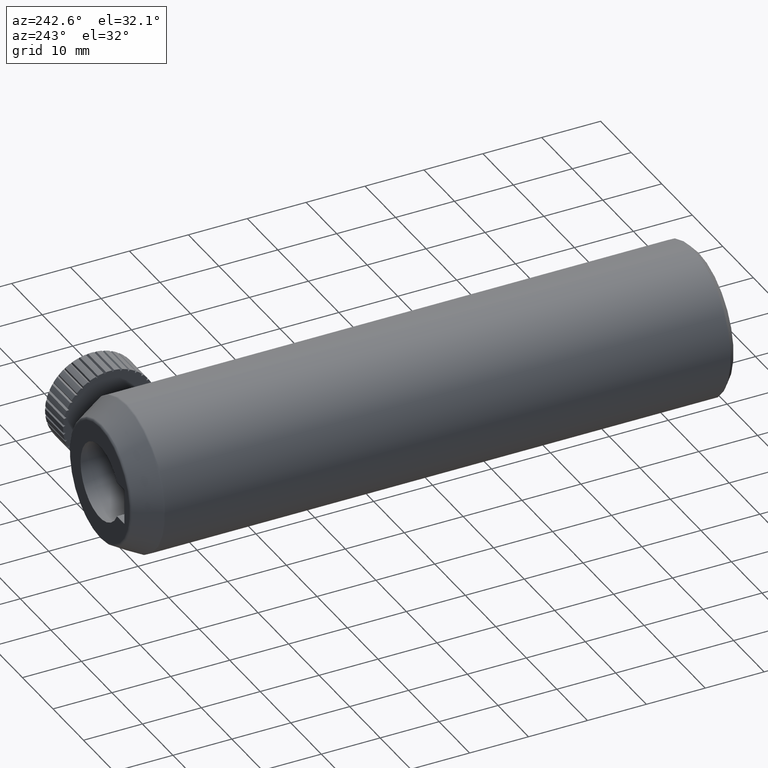
[diagram: clean part render]
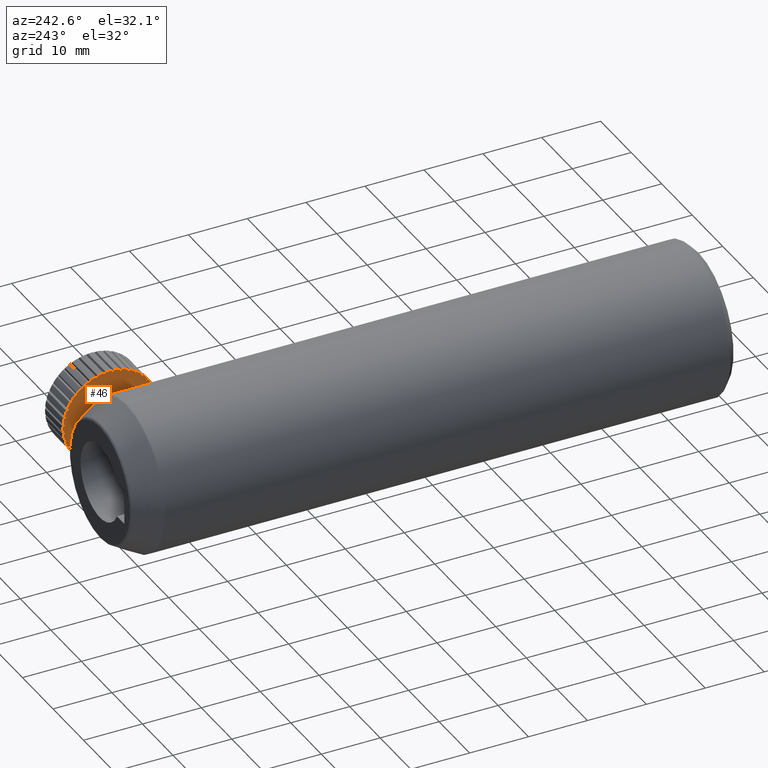
[diagram: same view with one face highlighted and labeled with its STEP entity id]
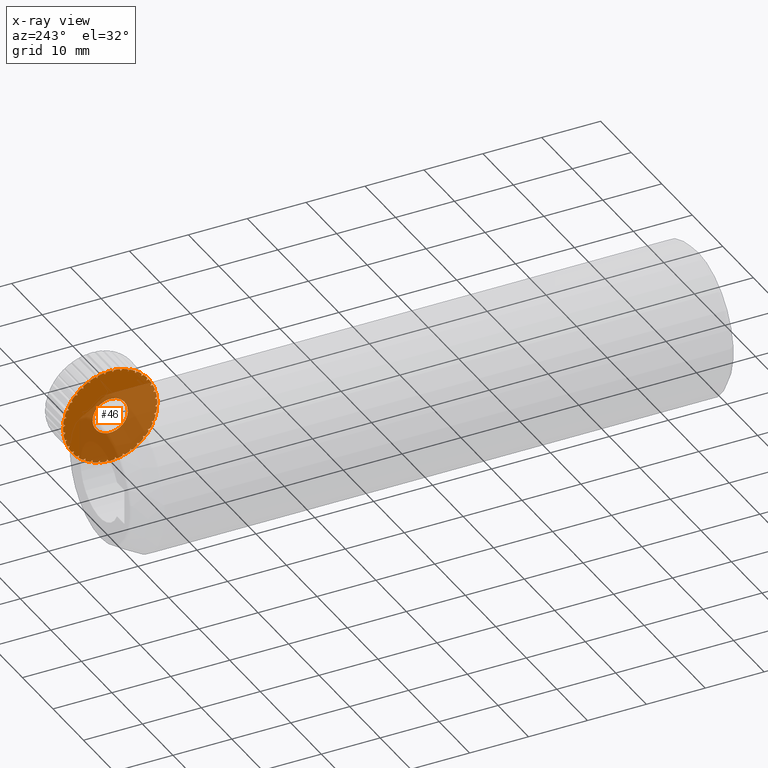
[diagram: x-ray of the same camera — body ghosted, the highlighted face saturated]
A machine part, auxiliary view. The second image highlights one B-rep face of the part: STEP entity #46.
The next image is the same camera in x-ray: the body ghosted, the highlighted face saturated — about 61% of this face is hidden behind the body in this view.
In plain terms, the highlighted planar face has unit normal (1, 0, 0).
Its self-contained STEP definition (entity closure, byte-faithful):
#46 = ADVANCED_FACE ( 'NONE', ( #4357, #4363 ), #2187, .F. ) ;
#111 = ORIENTED_EDGE ( 'NONE', *, *, #447, .F. ) ;
#112 = ORIENTED_EDGE ( 'NONE', *, *, #438, .F. ) ;
#113 = ORIENTED_EDGE ( 'NONE', *, *, #443, .T. ) ;
#114 = ORIENTED_EDGE ( 'NONE', *, *, #429, .F. ) ;
#117 = ORIENTED_EDGE ( 'NONE', *, *, #1901, .F. ) ;
#118 = ORIENTED_EDGE ( 'NONE', *, *, #419, .T. ) ;
#119 = ORIENTED_EDGE ( 'NONE', *, *, #416, .T. ) ;
#121 = ORIENTED_EDGE ( 'NONE', *, *, #3941, .F. ) ;
#123 = ORIENTED_EDGE ( 'NONE', *, *, #3937, .T. ) ;
#124 = ORIENTED_EDGE ( 'NONE', *, *, #446, .T. ) ;
#125 = ORIENTED_EDGE ( 'NONE', *, *, #437, .T. ) ;
#126 = ORIENTED_EDGE ( 'NONE', *, *, #428, .T. ) ;
#127 = ORIENTED_EDGE ( 'NONE', *, *, #3940, .T. ) ;
#130 = ORIENTED_EDGE ( 'NONE', *, *, #1903, .T. ) ;
#133 = ORIENTED_EDGE ( 'NONE', *, *, #1902, .T. ) ;
#135 = ORIENTED_EDGE ( 'NONE', *, *, #420, .F. ) ;
#137 = ORIENTED_EDGE ( 'NONE', *, *, #4001, .T. ) ;
#139 = ORIENTED_EDGE ( 'NONE', *, *, #425, .T. ) ;
#140 = ORIENTED_EDGE ( 'NONE', *, *, #434, .T. ) ;
#141 = DIRECTION ( 'NONE',  ( -1.201851678989727700E-017, -0.8337958893756813900, -0.5520728347421349800 ) ) ;
#146 = CARTESIAN_POINT ( 'NONE',  ( 9.790067190754960800, 80.24564457153198300, 6.681079067119640900 ) ) ;
#150 = DIRECTION ( 'NONE',  ( 1.201851678989727700E-017, -0.06121115493813667600, 0.9981248391414470100 ) ) ;
#153 = CARTESIAN_POINT ( 'NONE',  ( 9.790067190754960800, 84.48755540261930700, 1.951563910473908000E-014 ) ) ;
#154 = DIRECTION ( 'NONE',  ( 1.000000000000000000, 4.333342374871280700E-033, 0.0000000000000000000 ) ) ;
#155 = DIRECTION ( 'NONE',  ( 0.0000000000000000000, 0.8950070443138179500, -0.4460520043993119700 ) ) ;
#165 = CARTESIAN_POINT ( 'NONE',  ( 9.790067190754960800, 92.57315206029650800, 2.401494091012299000 ) ) ;
#166 = DIRECTION ( 'NONE',  ( -1.304085479583592900E-017, -0.7252622145944872500, -0.6884727446177516500 ) ) ;
#171 = CARTESIAN_POINT ( 'NONE',  ( 9.790067190754960800, 79.33677896592391200, 5.065260978915601300 ) ) ;
#174 = DIRECTION ( 'NONE',  ( 1.063100223296050500E-017, -0.2336037793549259600, 0.9723318745526626800 ) ) ;
#177 = CARTESIAN_POINT ( 'NONE',  ( 9.790067190754960800, 84.48755540261930700, 1.951563910473908000E-014 ) ) ;
#178 = DIRECTION ( 'NONE',  ( 1.000000000000000000, 4.333342374871280700E-033, 0.0000000000000000000 ) ) ;
#179 = DIRECTION ( 'NONE',  ( 0.0000000000000000000, 0.8950070443138179500, -0.4460520043993119700 ) ) ;
#189 = CARTESIAN_POINT ( 'NONE',  ( 9.790067190754960800, 92.24793540498004100, 4.059222965557456300 ) ) ;
#190 = DIRECTION ( 'NONE',  ( -1.366695302779399300E-017, -0.5946918144232320500, -0.8039537585321708800 ) ) ;
#195 = CARTESIAN_POINT ( 'NONE',  ( 9.790067190754960800, 78.92879319464819300, 3.189678044864419100 ) ) ;
#198 = DIRECTION ( 'NONE',  ( 8.920470052721973700E-018, -0.3988984711452247500, 0.9169950979792652600 ) ) ;
#201 = CARTESIAN_POINT ( 'NONE',  ( 9.790067190754960800, 84.48755540261930700, 1.951563910473908000E-014 ) ) ;
#202 = DIRECTION ( 'NONE',  ( 1.000000000000000000, 4.333342374871280700E-033, 0.0000000000000000000 ) ) ;
#203 = DIRECTION ( 'NONE',  ( 0.0000000000000000000, 0.8950070443138179500, -0.4460520043993119700 ) ) ;
#212 = CARTESIAN_POINT ( 'NONE',  ( 9.790067190754960800, 91.47937338231410800, 5.453907437683247900 ) ) ;
#214 = DIRECTION ( 'NONE',  ( -1.387778780781446000E-017, -0.4460520043993047000, -0.8950070443138213900 ) ) ;
#234 = CARTESIAN_POINT ( 'NONE',  ( 9.790067190754960800, 87.17257653556076500, -1.338156013197916400 ) ) ;
#416 = EDGE_CURVE ( 'NONE', #1644, #1648, #2508, .T. ) ;
#419 = EDGE_CURVE ( 'NONE', #1650, #1644, #2513, .T. ) ;
#420 = EDGE_CURVE ( 'NONE', #1650, #1653, #2511, .T. ) ;
#425 = EDGE_CURVE ( 'NONE', #1646, #1653, #2519, .T. ) ;
#428 = EDGE_CURVE ( 'NONE', #1647, #1646, #2525, .T. ) ;
#429 = EDGE_CURVE ( 'NONE', #1647, #1659, #2523, .T. ) ;
#434 = EDGE_CURVE ( 'NONE', #1652, #1659, #2531, .T. ) ;
#437 = EDGE_CURVE ( 'NONE', #1656, #1652, #2537, .T. ) ;
#438 = EDGE_CURVE ( 'NONE', #1656, #1665, #2535, .T. ) ;
#443 = EDGE_CURVE ( 'NONE', #1658, #1665, #2543, .T. ) ;
#446 = EDGE_CURVE ( 'NONE', #1662, #1658, #2549, .T. ) ;
#447 = EDGE_CURVE ( 'NONE', #1662, #1671, #2547, .T. ) ;
#495 = AXIS2_PLACEMENT_3D ( 'NONE', #2184, #2189, #2190 ) ;
#512 = CARTESIAN_POINT ( 'NONE',  ( 9.790067190754960800, 88.59404399831267100, 4.920430339726302700 ) ) ;
#516 = DIRECTION ( 'NONE',  ( 8.920470052722095400E-018, 0.9723318745526636800, 0.2336037793549223300 ) ) ;
#519 = CARTESIAN_POINT ( 'NONE',  ( 9.790067190754960800, 84.48755540261930700, 1.951563910473908000E-014 ) ) ;
#520 = DIRECTION ( 'NONE',  ( 1.000000000000000000, 4.333342374871280700E-033, 0.0000000000000000000 ) ) ;
#521 = DIRECTION ( 'NONE',  ( 0.0000000000000000000, 0.8950070443138179500, -0.4460520043993119700 ) ) ;
#531 = CARTESIAN_POINT ( 'NONE',  ( 9.790067190754960800, 81.09601837166974300, -2.248985927601265400 ) ) ;
#532 = DIRECTION ( 'NONE',  ( 2.409852562875266600E-018, -0.8039537585321689900, 0.5946918144232346000 ) ) ;
#537 = CARTESIAN_POINT ( 'NONE',  ( 9.790067190754960800, 88.58144074388373200, 5.952097907286344900 ) ) ;
#540 = DIRECTION ( 'NONE',  ( 1.063100223296060800E-017, 0.9169950979792668200, 0.3988984711452212600 ) ) ;
#543 = CARTESIAN_POINT ( 'NONE',  ( 9.790067190754960800, 84.48755540261930700, 1.951563910473908000E-014 ) ) ;
#544 = DIRECTION ( 'NONE',  ( 1.000000000000000000, 4.333342374871280700E-033, 0.0000000000000000000 ) ) ;
#545 = DIRECTION ( 'NONE',  ( 0.0000000000000000000, 0.8950070443138179500, -0.4460520043993119700 ) ) ;
#557 = CARTESIAN_POINT ( 'NONE',  ( 9.790067190754960800, 84.48755540261930700, 1.951563910473908000E-014 ) ) ;
#558 = DIRECTION ( 'NONE',  ( 1.000000000000000000, 4.333342374871280700E-033, 0.0000000000000000000 ) ) ;
#559 = DIRECTION ( 'NONE',  ( 0.0000000000000000000, 0.8950070443138182800, -0.4460520043993112000 ) ) ;
#724 = CARTESIAN_POINT ( 'NONE',  ( 9.790067190754960800, 85.37791099912341500, 4.617842540837251900 ) ) ;
#726 = DIRECTION ( 'NONE',  ( -4.746482975071783500E-018, 0.6884727446177541000, -0.7252622145944848100 ) ) ;
#731 = CARTESIAN_POINT ( 'NONE',  ( 9.790067190754960800, 90.38111291037786500, -2.517908500601527600 ) ) ;
#734 = DIRECTION ( 'NONE',  ( -8.920470052722163200E-018, -0.9723318745526621200, -0.2336037793549285400 ) ) ;
#737 = CARTESIAN_POINT ( 'NONE',  ( 9.790067190754960800, 84.48755540261930700, 1.951563910473908000E-014 ) ) ;
#738 = DIRECTION ( 'NONE',  ( 1.000000000000000000, 4.333342374871280700E-033, 0.0000000000000000000 ) ) ;
#739 = DIRECTION ( 'NONE',  ( 0.0000000000000000000, 0.8950070443138179500, -0.4460520043993119700 ) ) ;
#749 = CARTESIAN_POINT ( 'NONE',  ( 9.790067190754960800, 85.64541075200750700, 3.901260325169801000 ) ) ;
#750 = DIRECTION ( 'NONE',  ( -2.409852562875174200E-018, 0.8039537585321729900, -0.5946918144232291600 ) ) ;
#755 = CARTESIAN_POINT ( 'NONE',  ( 9.790067190754960800, 91.63301404814473000, -1.062914592254982700 ) ) ;
#758 = DIRECTION ( 'NONE',  ( -1.063100223296066800E-017, -0.9169950979792640400, -0.3988984711452275800 ) ) ;
#761 = CARTESIAN_POINT ( 'NONE',  ( 9.790067190754960800, 84.48755540261930700, 1.951563910473908000E-014 ) ) ;
#762 = DIRECTION ( 'NONE',  ( 1.000000000000000000, 4.333342374871280700E-033, 0.0000000000000000000 ) ) ;
#763 = DIRECTION ( 'NONE',  ( 0.0000000000000000000, 0.8950070443138179500, -0.4460520043993119700 ) ) ;
#773 = CARTESIAN_POINT ( 'NONE',  ( 9.790067190754960800, 86.19370431944670900, 3.423401944500349600 ) ) ;
#774 = DIRECTION ( 'NONE',  ( 1.625484873062827100E-031, 0.8950070443138229400, -0.4460520043993014300 ) ) ;
#779 = CARTESIAN_POINT ( 'NONE',  ( 9.790067190754960800, 92.37594136967105400, 0.6356035201459716600 ) ) ;
#782 = DIRECTION ( 'NONE',  ( -1.201851678989735700E-017, -0.8337958893756747300, -0.5520728347421447500 ) ) ;
#785 = CARTESIAN_POINT ( 'NONE',  ( 9.790067190754960800, 84.48755540261930700, 1.951563910473908000E-014 ) ) ;
#786 = DIRECTION ( 'NONE',  ( 1.000000000000000000, 4.333342374871280700E-033, 0.0000000000000000000 ) ) ;
#787 = DIRECTION ( 'NONE',  ( 0.0000000000000000000, 0.8950070443138179500, -0.4460520043993119700 ) ) ;
#797 = CARTESIAN_POINT ( 'NONE',  ( 9.790067190754960800, 86.90535923442925500, 3.273329461837966500 ) ) ;
#798 = DIRECTION ( 'NONE',  ( 2.409852562875481200E-018, 0.9588659939494139600, -0.2838591299349069700 ) ) ;
#803 = CARTESIAN_POINT ( 'NONE',  ( 9.790067190754960800, 92.57315206029650800, 2.401494091012341700 ) ) ;
#806 = DIRECTION ( 'NONE',  ( -1.304085479583594800E-017, -0.7252622145944842600, -0.6884727446177548700 ) ) ;
#809 = CARTESIAN_POINT ( 'NONE',  ( 9.790067190754960800, 84.48755540261930700, 1.951563910473908000E-014 ) ) ;
#810 = DIRECTION ( 'NONE',  ( 1.000000000000000000, 4.333342374871280700E-033, 0.0000000000000000000 ) ) ;
#811 = DIRECTION ( 'NONE',  ( 0.0000000000000000000, 0.8950070443138179500, -0.4460520043993119700 ) ) ;
#821 = CARTESIAN_POINT ( 'NONE',  ( 9.790067190754960800, 87.63856166102144100, 3.491183521344002600 ) ) ;
#822 = DIRECTION ( 'NONE',  ( 4.746482975072077000E-018, 0.9935902855684569700, -0.1130413394470899300 ) ) ;
#827 = CARTESIAN_POINT ( 'NONE',  ( 9.790067190754960800, 92.24793540498002600, 4.059222965557496300 ) ) ;
#830 = DIRECTION ( 'NONE',  ( -1.366695302779400400E-017, -0.5946918144232281600, -0.8039537585321736600 ) ) ;
#833 = CARTESIAN_POINT ( 'NONE',  ( 9.790067190754960800, 84.48755540261930700, 1.951563910473908000E-014 ) ) ;
#834 = DIRECTION ( 'NONE',  ( 1.000000000000000000, 4.333342374871280700E-033, 0.0000000000000000000 ) ) ;
#835 = DIRECTION ( 'NONE',  ( 0.0000000000000000000, 0.8950070443138179500, -0.4460520043993119700 ) ) ;
#845 = CARTESIAN_POINT ( 'NONE',  ( 9.790067190754960800, 82.78140648579199000, -3.423401944500357200 ) ) ;
#846 = DIRECTION ( 'NONE',  ( -6.471124613141111400E-032, -0.8950070443138198300, 0.4460520043993077600 ) ) ;
#851 = CARTESIAN_POINT ( 'NONE',  ( 9.790067190754960800, 88.15258418389365100, 7.014142073869845000 ) ) ;
#854 = DIRECTION ( 'NONE',  ( 1.201851678989730900E-017, 0.8337958893756787200, 0.5520728347421388600 ) ) ;
#857 = CARTESIAN_POINT ( 'NONE',  ( 9.790067190754960800, 84.48755540261930700, 1.951563910473908000E-014 ) ) ;
#858 = DIRECTION ( 'NONE',  ( 1.000000000000000000, 4.333342374871280700E-033, 0.0000000000000000000 ) ) ;
#859 = DIRECTION ( 'NONE',  ( 0.0000000000000000000, 0.8950070443138179500, -0.4460520043993119700 ) ) ;
#869 = CARTESIAN_POINT ( 'NONE',  ( 9.790067190754960800, 84.73383689042714200, -4.061995391875037800 ) ) ;
#870 = DIRECTION ( 'NONE',  ( -2.409852562875392600E-018, -0.9588659939494120800, 0.2838591299349131900 ) ) ;
#875 = CARTESIAN_POINT ( 'NONE',  ( 9.790067190754960800, 87.30633556397072000, 7.949750032660116300 ) ) ;
#878 = DIRECTION ( 'NONE',  ( 1.304085479583591800E-017, 0.7252622145944887000, 0.6884727446177501000 ) ) ;
#881 = CARTESIAN_POINT ( 'NONE',  ( 9.790067190754960800, 84.48755540261930700, 1.951563910473908000E-014 ) ) ;
#882 = DIRECTION ( 'NONE',  ( 1.000000000000000000, 4.333342374871280700E-033, 0.0000000000000000000 ) ) ;
#883 = DIRECTION ( 'NONE',  ( 0.0000000000000000000, 0.8950070443138179500, -0.4460520043993119700 ) ) ;
#893 = CARTESIAN_POINT ( 'NONE',  ( 9.790067190754960800, 86.77379541425112600, -4.109782163254704000 ) ) ;
#894 = DIRECTION ( 'NONE',  ( -4.746482975071984600E-018, -0.9935902855684560800, 0.1130413394470969200 ) ) ;
#899 = CARTESIAN_POINT ( 'NONE',  ( 9.790067190754960800, 86.09768915220894300, 8.608615345895176000 ) ) ;
#902 = DIRECTION ( 'NONE',  ( 1.366695302779398700E-017, 0.5946918144232339300, 0.8039537585321694400 ) ) ;
#905 = CARTESIAN_POINT ( 'NONE',  ( 9.790067190754960800, 84.48755540261930700, 1.951563910473908000E-014 ) ) ;
#906 = DIRECTION ( 'NONE',  ( 1.000000000000000000, 4.333342374871280700E-033, 0.0000000000000000000 ) ) ;
#907 = DIRECTION ( 'NONE',  ( 0.0000000000000000000, 0.8950070443138179500, -0.4460520043993119700 ) ) ;
#917 = CARTESIAN_POINT ( 'NONE',  ( 9.790067190754960800, 88.71418742682351400, -3.572982889963443500 ) ) ;
#918 = DIRECTION ( 'NONE',  ( -6.938893903907300800E-018, -0.9981248391414465600, -0.06121115493814232400 ) ) ;
#923 = CARTESIAN_POINT ( 'NONE',  ( 9.790067190754960800, 84.63256949331339700, 8.866205271337930700 ) ) ;
#926 = DIRECTION ( 'NONE',  ( 1.387778780781446000E-017, 0.4460520043993067000, 0.8950070443138203900 ) ) ;
#929 = CARTESIAN_POINT ( 'NONE',  ( 9.790067190754960800, 84.48755540261930700, 1.951563910473908000E-014 ) ) ;
#930 = DIRECTION ( 'NONE',  ( 1.000000000000000000, 4.333342374871280700E-033, 0.0000000000000000000 ) ) ;
#931 = DIRECTION ( 'NONE',  ( 0.0000000000000000000, 0.8950070443138179500, -0.4460520043993119700 ) ) ;
#941 = CARTESIAN_POINT ( 'NONE',  ( 9.790067190754960800, 90.38111291037782300, -2.517908500601557400 ) ) ;
#942 = DIRECTION ( 'NONE',  ( -8.920470052722118500E-018, -0.9723318745526632300, -0.2336037793549243800 ) ) ;
#947 = CARTESIAN_POINT ( 'NONE',  ( 9.790067190754960800, 83.05626635114840900, 8.640150491530155500 ) ) ;
#950 = DIRECTION ( 'NONE',  ( 1.366695302779396100E-017, 0.2838591299349120200, 0.9588659939494124100 ) ) ;
#953 = CARTESIAN_POINT ( 'NONE',  ( 9.790067190754960800, 84.48755540261930700, 1.951563910473908000E-014 ) ) ;
#954 = DIRECTION ( 'NONE',  ( 1.000000000000000000, 4.333342374871280700E-033, 0.0000000000000000000 ) ) ;
#955 = DIRECTION ( 'NONE',  ( 0.0000000000000000000, 0.8950070443138179500, -0.4460520043993119700 ) ) ;
#965 = CARTESIAN_POINT ( 'NONE',  ( 9.790067190754960800, 91.63301404814470200, -1.062914592255022700 ) ) ;
#966 = DIRECTION ( 'NONE',  ( -1.063100223296062700E-017, -0.9169950979792659300, -0.3988984711452232500 ) ) ;
#971 = CARTESIAN_POINT ( 'NONE',  ( 9.790067190754960800, 81.53686546049746700, 7.901738798851075900 ) ) ;
#974 = DIRECTION ( 'NONE',  ( 1.304085479583586600E-017, 0.1130413394470955300, 0.9935902855684561900 ) ) ;
#977 = CARTESIAN_POINT ( 'NONE',  ( 9.790067190754960800, 84.48755540261930700, 1.951563910473908000E-014 ) ) ;
#978 = DIRECTION ( 'NONE',  ( 1.000000000000000000, 4.333342374871280700E-033, 0.0000000000000000000 ) ) ;
#979 = DIRECTION ( 'NONE',  ( 0.0000000000000000000, 0.8950070443138179500, -0.4460520043993119700 ) ) ;
#988 = CARTESIAN_POINT ( 'NONE',  ( 9.790067190754960800, 92.37594136967101100, 0.6356035201458567500 ) ) ;
#1007 = CARTESIAN_POINT ( 'NONE',  ( 9.790067190754960800, 87.30633556397074800, 7.949750032660092300 ) ) ;
#1013 = DIRECTION ( 'NONE',  ( 1.304085479583590000E-017, 0.7252622145944919200, 0.6884727446177467700 ) ) ;
#1017 = CARTESIAN_POINT ( 'NONE',  ( 9.790067190754960800, 86.77511780625182800, 6.852329890980803900 ) ) ;
#1018 = DIRECTION ( 'NONE',  ( -1.063100223296056800E-017, 0.2336037793549191300, -0.9723318745526643400 ) ) ;
#1024 = CARTESIAN_POINT ( 'NONE',  ( 9.790067190754960800, 84.48755540261930700, 1.951563910473908000E-014 ) ) ;
#1025 = DIRECTION ( 'NONE',  ( 1.000000000000000000, 4.333342374871280700E-033, 0.0000000000000000000 ) ) ;
#1026 = DIRECTION ( 'NONE',  ( 0.0000000000000000000, 0.8950070443138179500, -0.4460520043993119700 ) ) ;
#1036 = CARTESIAN_POINT ( 'NONE',  ( 9.790067190754960800, 86.09768915220897200, 8.608615345895161800 ) ) ;
#1037 = DIRECTION ( 'NONE',  ( 1.366695302779397900E-017, 0.5946918144232376000, 0.8039537585321668800 ) ) ;
#1041 = CARTESIAN_POINT ( 'NONE',  ( 9.790067190754960800, 85.94380569418960600, 6.241251349125415800 ) ) ;
#1042 = DIRECTION ( 'NONE',  ( -8.920470052722043000E-018, 0.3988984711452184800, -0.9169950979792679300 ) ) ;
#1048 = CARTESIAN_POINT ( 'NONE',  ( 9.790067190754960800, 84.48755540261930700, 1.951563910473908000E-014 ) ) ;
#1049 = DIRECTION ( 'NONE',  ( 1.000000000000000000, 4.333342374871280700E-033, 0.0000000000000000000 ) ) ;
#1050 = DIRECTION ( 'NONE',  ( 0.0000000000000000000, 0.8950070443138179500, -0.4460520043993119700 ) ) ;
#1060 = CARTESIAN_POINT ( 'NONE',  ( 9.790067190754960800, 84.63256949331344000, 8.866205271337927100 ) ) ;
#1061 = DIRECTION ( 'NONE',  ( 1.387778780781446000E-017, 0.4460520043993109800, 0.8950070443138182800 ) ) ;
#1065 = CARTESIAN_POINT ( 'NONE',  ( 9.790067190754960800, 85.46853334051274900, 5.446862150391404500 ) ) ;
#1066 = DIRECTION ( 'NONE',  ( -6.938893903907213000E-018, 0.5520728347421362000, -0.8337958893756803900 ) ) ;
#1072 = CARTESIAN_POINT ( 'NONE',  ( 9.790067190754960800, 84.48755540261930700, 1.951563910473908000E-014 ) ) ;
#1073 = DIRECTION ( 'NONE',  ( 1.000000000000000000, 4.333342374871280700E-033, 0.0000000000000000000 ) ) ;
#1074 = DIRECTION ( 'NONE',  ( 0.0000000000000000000, 0.8950070443138179500, -0.4460520043993119700 ) ) ;
#1084 = CARTESIAN_POINT ( 'NONE',  ( 9.790067190754960800, 83.05626635114845200, 8.640150491530167900 ) ) ;
#1085 = DIRECTION ( 'NONE',  ( 1.366695302779397000E-017, 0.2838591299349164100, 0.9588659939494110800 ) ) ;
#1089 = CARTESIAN_POINT ( 'NONE',  ( 9.790067190754960800, 85.37791099912341500, 4.617842540837293600 ) ) ;
#1090 = DIRECTION ( 'NONE',  ( -4.746482975071897500E-018, 0.6884727446177477700, -0.7252622145944909200 ) ) ;
#1096 = CARTESIAN_POINT ( 'NONE',  ( 9.790067190754960800, 84.48755540261930700, 1.951563910473908000E-014 ) ) ;
#1097 = DIRECTION ( 'NONE',  ( 1.000000000000000000, 4.333342374871280700E-033, 0.0000000000000000000 ) ) ;
#1098 = DIRECTION ( 'NONE',  ( 0.0000000000000000000, 0.8950070443138179500, -0.4460520043993119700 ) ) ;
#1105 = CARTESIAN_POINT ( 'NONE',  ( 9.790067190754960800, 89.40488294548578100, 6.310300296829543000 ) ) ;
#1109 = CARTESIAN_POINT ( 'NONE',  ( 9.790067190754960800, 87.87529286916807800, 7.247291553245386100 ) ) ;
#1110 = CARTESIAN_POINT ( 'NONE',  ( 9.790067190754960800, 88.23440554385923900, 7.068317622963088600 ) ) ;
#1113 = CARTESIAN_POINT ( 'NONE',  ( 9.790067190754960800, 87.89985323627404100, 6.846803889000724100 ) ) ;
#1122 = VERTEX_POINT ( 'NONE', #1105 ) ;
#1129 = VERTEX_POINT ( 'NONE', #1109 ) ;
#1130 = VERTEX_POINT ( 'NONE', #1110 ) ;
#1133 = VERTEX_POINT ( 'NONE', #1113 ) ;
#1287 = ORIENTED_EDGE ( 'NONE', *, *, #1899, .F. ) ;
#1288 = ORIENTED_EDGE ( 'NONE', *, *, #1894, .T. ) ;
#1289 = ORIENTED_EDGE ( 'NONE', *, *, #1891, .T. ) ;
#1290 = ORIENTED_EDGE ( 'NONE', *, *, #1886, .F. ) ;
#1291 = ORIENTED_EDGE ( 'NONE', *, *, #1885, .T. ) ;
#1292 = ORIENTED_EDGE ( 'NONE', *, *, #1882, .T. ) ;
#1293 = ORIENTED_EDGE ( 'NONE', *, *, #1877, .F. ) ;
#1294 = ORIENTED_EDGE ( 'NONE', *, *, #1876, .T. ) ;
#1295 = ORIENTED_EDGE ( 'NONE', *, *, #1873, .T. ) ;
#1296 = ORIENTED_EDGE ( 'NONE', *, *, #4544, .F. ) ;
#1297 = ORIENTED_EDGE ( 'NONE', *, *, #4543, .T. ) ;
#1298 = ORIENTED_EDGE ( 'NONE', *, *, #4540, .T. ) ;
#1299 = ORIENTED_EDGE ( 'NONE', *, *, #4535, .F. ) ;
#1300 = ORIENTED_EDGE ( 'NONE', *, *, #4534, .T. ) ;
#1301 = ORIENTED_EDGE ( 'NONE', *, *, #4531, .T. ) ;
#1302 = ORIENTED_EDGE ( 'NONE', *, *, #4526, .F. ) ;
#1303 = ORIENTED_EDGE ( 'NONE', *, *, #4525, .T. ) ;
#1304 = ORIENTED_EDGE ( 'NONE', *, *, #4522, .T. ) ;
#1305 = ORIENTED_EDGE ( 'NONE', *, *, #4517, .F. ) ;
#1306 = ORIENTED_EDGE ( 'NONE', *, *, #4516, .T. ) ;
#1307 = ORIENTED_EDGE ( 'NONE', *, *, #4513, .T. ) ;
#1308 = ORIENTED_EDGE ( 'NONE', *, *, #4508, .F. ) ;
#1309 = ORIENTED_EDGE ( 'NONE', *, *, #4507, .T. ) ;
#1310 = ORIENTED_EDGE ( 'NONE', *, *, #4504, .T. ) ;
#1311 = ORIENTED_EDGE ( 'NONE', *, *, #1949, .F. ) ;
#1312 = ORIENTED_EDGE ( 'NONE', *, *, #1948, .T. ) ;
#1313 = ORIENTED_EDGE ( 'NONE', *, *, #1945, .T. ) ;
#1314 = ORIENTED_EDGE ( 'NONE', *, *, #1940, .F. ) ;
#1315 = ORIENTED_EDGE ( 'NONE', *, *, #1939, .T. ) ;
#1316 = ORIENTED_EDGE ( 'NONE', *, *, #1936, .T. ) ;
#1317 = ORIENTED_EDGE ( 'NONE', *, *, #3932, .F. ) ;
#1318 = ORIENTED_EDGE ( 'NONE', *, *, #3931, .T. ) ;
#1319 = ORIENTED_EDGE ( 'NONE', *, *, #3928, .T. ) ;
#1320 = ORIENTED_EDGE ( 'NONE', *, *, #3923, .F. ) ;
#1321 = ORIENTED_EDGE ( 'NONE', *, *, #3922, .T. ) ;
#1322 = ORIENTED_EDGE ( 'NONE', *, *, #3919, .T. ) ;
#1323 = ORIENTED_EDGE ( 'NONE', *, *, #3914, .F. ) ;
#1324 = ORIENTED_EDGE ( 'NONE', *, *, #3913, .T. ) ;
#1325 = ORIENTED_EDGE ( 'NONE', *, *, #3910, .T. ) ;
#1326 = ORIENTED_EDGE ( 'NONE', *, *, #3905, .F. ) ;
#1327 = ORIENTED_EDGE ( 'NONE', *, *, #3904, .T. ) ;
#1328 = ORIENTED_EDGE ( 'NONE', *, *, #3901, .T. ) ;
#1329 = ORIENTED_EDGE ( 'NONE', *, *, #3896, .F. ) ;
#1330 = ORIENTED_EDGE ( 'NONE', *, *, #3895, .T. ) ;
#1331 = ORIENTED_EDGE ( 'NONE', *, *, #4630, .T. ) ;
#1332 = ORIENTED_EDGE ( 'NONE', *, *, #4625, .F. ) ;
#1333 = ORIENTED_EDGE ( 'NONE', *, *, #4624, .T. ) ;
#1334 = ORIENTED_EDGE ( 'NONE', *, *, #4621, .T. ) ;
#1335 = ORIENTED_EDGE ( 'NONE', *, *, #4616, .F. ) ;
#1336 = ORIENTED_EDGE ( 'NONE', *, *, #4615, .T. ) ;
#1337 = ORIENTED_EDGE ( 'NONE', *, *, #4612, .T. ) ;
#1338 = ORIENTED_EDGE ( 'NONE', *, *, #4607, .F. ) ;
#1339 = ORIENTED_EDGE ( 'NONE', *, *, #4606, .T. ) ;
#1340 = ORIENTED_EDGE ( 'NONE', *, *, #4603, .T. ) ;
#1341 = ORIENTED_EDGE ( 'NONE', *, *, #4598, .F. ) ;
#1342 = ORIENTED_EDGE ( 'NONE', *, *, #4597, .T. ) ;
#1343 = ORIENTED_EDGE ( 'NONE', *, *, #4594, .T. ) ;
#1344 = ORIENTED_EDGE ( 'NONE', *, *, #4589, .F. ) ;
#1345 = ORIENTED_EDGE ( 'NONE', *, *, #4588, .T. ) ;
#1346 = ORIENTED_EDGE ( 'NONE', *, *, #4585, .T. ) ;
#1347 = ORIENTED_EDGE ( 'NONE', *, *, #4580, .F. ) ;
#1348 = ORIENTED_EDGE ( 'NONE', *, *, #4579, .T. ) ;
#1349 = ORIENTED_EDGE ( 'NONE', *, *, #4576, .T. ) ;
#1350 = ORIENTED_EDGE ( 'NONE', *, *, #4571, .F. ) ;
#1351 = ORIENTED_EDGE ( 'NONE', *, *, #4570, .T. ) ;
#1352 = ORIENTED_EDGE ( 'NONE', *, *, #4567, .T. ) ;
#1353 = ORIENTED_EDGE ( 'NONE', *, *, #4562, .F. ) ;
#1354 = ORIENTED_EDGE ( 'NONE', *, *, #4561, .T. ) ;
#1355 = ORIENTED_EDGE ( 'NONE', *, *, #4558, .T. ) ;
#1356 = ORIENTED_EDGE ( 'NONE', *, *, #4553, .F. ) ;
#1357 = ORIENTED_EDGE ( 'NONE', *, *, #4552, .T. ) ;
#1358 = ORIENTED_EDGE ( 'NONE', *, *, #4549, .T. ) ;
#1359 = ORIENTED_EDGE ( 'NONE', *, *, #3995, .F. ) ;
#1360 = ORIENTED_EDGE ( 'NONE', *, *, #3994, .T. ) ;
#1361 = ORIENTED_EDGE ( 'NONE', *, *, #3991, .T. ) ;
#1362 = ORIENTED_EDGE ( 'NONE', *, *, #3986, .F. ) ;
#1363 = ORIENTED_EDGE ( 'NONE', *, *, #3985, .T. ) ;
#1364 = ORIENTED_EDGE ( 'NONE', *, *, #3982, .T. ) ;
#1365 = ORIENTED_EDGE ( 'NONE', *, *, #3977, .F. ) ;
#1366 = ORIENTED_EDGE ( 'NONE', *, *, #3976, .T. ) ;
#1367 = ORIENTED_EDGE ( 'NONE', *, *, #3973, .T. ) ;
#1368 = ORIENTED_EDGE ( 'NONE', *, *, #3968, .F. ) ;
#1369 = ORIENTED_EDGE ( 'NONE', *, *, #3967, .T. ) ;
#1370 = ORIENTED_EDGE ( 'NONE', *, *, #3964, .T. ) ;
#1371 = ORIENTED_EDGE ( 'NONE', *, *, #3959, .F. ) ;
#1372 = ORIENTED_EDGE ( 'NONE', *, *, #3958, .T. ) ;
#1373 = ORIENTED_EDGE ( 'NONE', *, *, #3955, .T. ) ;
#1374 = ORIENTED_EDGE ( 'NONE', *, *, #3950, .F. ) ;
#1375 = ORIENTED_EDGE ( 'NONE', *, *, #3949, .T. ) ;
#1376 = ORIENTED_EDGE ( 'NONE', *, *, #3946, .T. ) ;
#1492 = EDGE_LOOP ( 'NONE', ( #137 ) ) ;
#1494 = EDGE_LOOP ( 'NONE', ( #1287, #1288, #1289, #1290, #1291, #1292, #1293, #1294, #1295, #1296, #1297, #1298, #1299, #1300, #1301, #1302, #1303, #1304, #1305, #1306, #1307, #1308, #1309, #1310, #1311, #1312, #1313, #1314, #1315, #1316, #1317, #1318, #1319, #1320, #1321, #1322, #1323, #1324, #1325, #1326, #1327, #1328, #1329, #1330, #1331, #1332, #1333, #1334, #1335, #1336, #1337, #1338, #1339, #1340, #1341, #1342, #1343, #1344, #1345, #1346, #1347, #1348, #1349, #1350, #1351, #1352, #1353, #1354, #1355, #1356, #1357, #1358, #1359, #1360, #1361, #1362, #1363, #1364, #1365, #1366, #1367, #1368, #1369, #1370, #1371, #1372, #1373, #1374, #1375, #1376, #121, #127, #123, #111, #124, #113, #112, #125, #140, #114, #126, #139, #135, #118, #119, #117, #133, #130 ) ) ;
#1644 = VERTEX_POINT ( 'NONE', #3234 ) ;
#1646 = VERTEX_POINT ( 'NONE', #3236 ) ;
#1647 = VERTEX_POINT ( 'NONE', #3237 ) ;
#1648 = VERTEX_POINT ( 'NONE', #3238 ) ;
#1650 = VERTEX_POINT ( 'NONE', #3240 ) ;
#1652 = VERTEX_POINT ( 'NONE', #3242 ) ;
#1653 = VERTEX_POINT ( 'NONE', #3243 ) ;
#1656 = VERTEX_POINT ( 'NONE', #3246 ) ;
#1658 = VERTEX_POINT ( 'NONE', #3248 ) ;
#1659 = VERTEX_POINT ( 'NONE', #3249 ) ;
#1662 = VERTEX_POINT ( 'NONE', #3252 ) ;
#1664 = VERTEX_POINT ( 'NONE', #3254 ) ;
#1665 = VERTEX_POINT ( 'NONE', #3255 ) ;
#1668 = VERTEX_POINT ( 'NONE', #3258 ) ;
#1670 = VERTEX_POINT ( 'NONE', #3260 ) ;
#1671 = VERTEX_POINT ( 'NONE', #3261 ) ;
#1674 = VERTEX_POINT ( 'NONE', #3264 ) ;
#1676 = VERTEX_POINT ( 'NONE', #3266 ) ;
#1677 = VERTEX_POINT ( 'NONE', #3267 ) ;
#1680 = VERTEX_POINT ( 'NONE', #3270 ) ;
#1682 = VERTEX_POINT ( 'NONE', #3272 ) ;
#1683 = VERTEX_POINT ( 'NONE', #3273 ) ;
#1686 = VERTEX_POINT ( 'NONE', #3276 ) ;
#1688 = VERTEX_POINT ( 'NONE', #3278 ) ;
#1689 = VERTEX_POINT ( 'NONE', #3279 ) ;
#1692 = VERTEX_POINT ( 'NONE', #3282 ) ;
#1694 = VERTEX_POINT ( 'NONE', #3284 ) ;
#1695 = VERTEX_POINT ( 'NONE', #3285 ) ;
#1698 = VERTEX_POINT ( 'NONE', #3288 ) ;
#1700 = VERTEX_POINT ( 'NONE', #3290 ) ;
#1701 = VERTEX_POINT ( 'NONE', #3291 ) ;
#1704 = VERTEX_POINT ( 'NONE', #3294 ) ;
#1706 = VERTEX_POINT ( 'NONE', #3296 ) ;
#1707 = VERTEX_POINT ( 'NONE', #3297 ) ;
#1710 = VERTEX_POINT ( 'NONE', #3300 ) ;
#1712 = VERTEX_POINT ( 'NONE', #3302 ) ;
#1713 = VERTEX_POINT ( 'NONE', #3303 ) ;
#1716 = VERTEX_POINT ( 'NONE', #3306 ) ;
#1718 = VERTEX_POINT ( 'NONE', #3308 ) ;
#1719 = VERTEX_POINT ( 'NONE', #3309 ) ;
#1722 = VERTEX_POINT ( 'NONE', #3312 ) ;
#1724 = VERTEX_POINT ( 'NONE', #3314 ) ;
#1725 = VERTEX_POINT ( 'NONE', #3315 ) ;
#1728 = VERTEX_POINT ( 'NONE', #3318 ) ;
#1730 = VERTEX_POINT ( 'NONE', #3320 ) ;
#1731 = VERTEX_POINT ( 'NONE', #3321 ) ;
#1734 = VERTEX_POINT ( 'NONE', #3324 ) ;
#1736 = VERTEX_POINT ( 'NONE', #3326 ) ;
#1737 = VERTEX_POINT ( 'NONE', #3327 ) ;
#1740 = VERTEX_POINT ( 'NONE', #3330 ) ;
#1742 = VERTEX_POINT ( 'NONE', #3332 ) ;
#1743 = VERTEX_POINT ( 'NONE', #3333 ) ;
#1746 = VERTEX_POINT ( 'NONE', #3336 ) ;
#1748 = VERTEX_POINT ( 'NONE', #3338 ) ;
#1749 = VERTEX_POINT ( 'NONE', #3339 ) ;
#1752 = VERTEX_POINT ( 'NONE', #3342 ) ;
#1754 = VERTEX_POINT ( 'NONE', #3344 ) ;
#1755 = VERTEX_POINT ( 'NONE', #3345 ) ;
#1758 = VERTEX_POINT ( 'NONE', #3348 ) ;
#1760 = VERTEX_POINT ( 'NONE', #3350 ) ;
#1761 = VERTEX_POINT ( 'NONE', #3351 ) ;
#1764 = VERTEX_POINT ( 'NONE', #3354 ) ;
#1766 = VERTEX_POINT ( 'NONE', #3356 ) ;
#1767 = VERTEX_POINT ( 'NONE', #3357 ) ;
#1770 = VERTEX_POINT ( 'NONE', #3360 ) ;
#1772 = VERTEX_POINT ( 'NONE', #3362 ) ;
#1773 = VERTEX_POINT ( 'NONE', #3363 ) ;
#1776 = VERTEX_POINT ( 'NONE', #3366 ) ;
#1778 = VERTEX_POINT ( 'NONE', #3368 ) ;
#1779 = VERTEX_POINT ( 'NONE', #3369 ) ;
#1782 = VERTEX_POINT ( 'NONE', #3372 ) ;
#1784 = VERTEX_POINT ( 'NONE', #3374 ) ;
#1785 = VERTEX_POINT ( 'NONE', #3375 ) ;
#1788 = VERTEX_POINT ( 'NONE', #3378 ) ;
#1790 = VERTEX_POINT ( 'NONE', #3380 ) ;
#1791 = VERTEX_POINT ( 'NONE', #3381 ) ;
#1794 = VERTEX_POINT ( 'NONE', #1955 ) ;
#1796 = VERTEX_POINT ( 'NONE', #1957 ) ;
#1797 = VERTEX_POINT ( 'NONE', #1958 ) ;
#1800 = VERTEX_POINT ( 'NONE', #1961 ) ;
#1802 = VERTEX_POINT ( 'NONE', #1963 ) ;
#1803 = VERTEX_POINT ( 'NONE', #1964 ) ;
#1806 = VERTEX_POINT ( 'NONE', #1967 ) ;
#1808 = VERTEX_POINT ( 'NONE', #1969 ) ;
#1809 = VERTEX_POINT ( 'NONE', #1970 ) ;
#1812 = VERTEX_POINT ( 'NONE', #1973 ) ;
#1814 = VERTEX_POINT ( 'NONE', #1975 ) ;
#1815 = VERTEX_POINT ( 'NONE', #1976 ) ;
#1818 = VERTEX_POINT ( 'NONE', #1979 ) ;
#1820 = VERTEX_POINT ( 'NONE', #1981 ) ;
#1821 = VERTEX_POINT ( 'NONE', #1982 ) ;
#1824 = VERTEX_POINT ( 'NONE', #1985 ) ;
#1826 = VERTEX_POINT ( 'NONE', #1987 ) ;
#1827 = VERTEX_POINT ( 'NONE', #1988 ) ;
#1830 = VERTEX_POINT ( 'NONE', #1991 ) ;
#1832 = VERTEX_POINT ( 'NONE', #1993 ) ;
#1833 = VERTEX_POINT ( 'NONE', #1994 ) ;
#1836 = VERTEX_POINT ( 'NONE', #1997 ) ;
#1838 = VERTEX_POINT ( 'NONE', #1999 ) ;
#1839 = VERTEX_POINT ( 'NONE', #2000 ) ;
#1842 = VERTEX_POINT ( 'NONE', #2003 ) ;
#1844 = VERTEX_POINT ( 'NONE', #2005 ) ;
#1845 = VERTEX_POINT ( 'NONE', #2006 ) ;
#1848 = VERTEX_POINT ( 'NONE', #2009 ) ;
#1873 = EDGE_CURVE ( 'NONE', #1832, #1839, #2585, .T. ) ;
#1876 = EDGE_CURVE ( 'NONE', #1836, #1832, #2586, .T. ) ;
#1877 = EDGE_CURVE ( 'NONE', #1836, #1845, #2545, .T. ) ;
#1882 = EDGE_CURVE ( 'NONE', #1838, #1845, #2596, .T. ) ;
#1885 = EDGE_CURVE ( 'NONE', #1842, #1838, #2598, .T. ) ;
#1886 = EDGE_CURVE ( 'NONE', #1842, #1122, #2594, .T. ) ;
#1891 = EDGE_CURVE ( 'NONE', #1844, #1122, #2608, .T. ) ;
#1894 = EDGE_CURVE ( 'NONE', #1848, #1844, #2610, .T. ) ;
#1899 = EDGE_CURVE ( 'NONE', #1848, #1130, #2612, .T. ) ;
#1901 = EDGE_CURVE ( 'NONE', #1129, #1648, #4649, .T. ) ;
#1902 = EDGE_CURVE ( 'NONE', #1129, #1133, #4648, .T. ) ;
#1903 = EDGE_CURVE ( 'NONE', #1133, #1130, #4650, .T. ) ;
#1936 = EDGE_CURVE ( 'NONE', #1790, #1797, #4708, .T. ) ;
#1939 = EDGE_CURVE ( 'NONE', #1794, #1790, #4710, .T. ) ;
#1940 = EDGE_CURVE ( 'NONE', #1794, #1803, #4707, .T. ) ;
#1945 = EDGE_CURVE ( 'NONE', #1796, #1803, #4720, .T. ) ;
#1948 = EDGE_CURVE ( 'NONE', #1800, #1796, #4722, .T. ) ;
#1949 = EDGE_CURVE ( 'NONE', #1800, #1809, #4718, .T. ) ;
#1955 = CARTESIAN_POINT ( 'NONE',  ( 9.790067190754960800, 91.03646987511510200, -4.594749093469079800 ) ) ;
#1957 = CARTESIAN_POINT ( 'NONE',  ( 9.790067190754960800, 91.33435929162004600, -3.412297833654645900 ) ) ;
#1958 = CARTESIAN_POINT ( 'NONE',  ( 9.790067190754960800, 90.79785569944881700, -4.917327542866471100 ) ) ;
#1961 = CARTESIAN_POINT ( 'NONE',  ( 9.790067190754960800, 91.73484695586471100, -3.387737466548681000 ) ) ;
#1963 = CARTESIAN_POINT ( 'NONE',  ( 9.790067190754960800, 91.82288025633231100, -2.171522344002028100 ) ) ;
#1964 = CARTESIAN_POINT ( 'NONE',  ( 9.790067190754960800, 91.55587302558241400, -3.746850141239834700 ) ) ;
#1967 = CARTESIAN_POINT ( 'NONE',  ( 9.790067190754960800, 92.21301875007542000, -2.077791150985075900 ) ) ;
#1969 = CARTESIAN_POINT ( 'NONE',  ( 9.790067190754960800, 92.08852108721799800, -0.8647662467702278400 ) ) ;
#1970 = CARTESIAN_POINT ( 'NONE',  ( 9.790067190754960800, 92.09912309748358400, -2.462526594069285300 ) ) ;
#1973 = CARTESIAN_POINT ( 'NONE',  ( 9.790067190754960800, 92.45645624974677900, -0.7047122027118369900 ) ) ;
#1975 = CARTESIAN_POINT ( 'NONE',  ( 9.790067190754960800, 92.12321042205135800, 0.4682653352768516600 ) ) ;
#1976 = CARTESIAN_POINT ( 'NONE',  ( 9.790067190754960800, 92.41109953661538200, -1.103380422436512700 ) ) ;
#1979 = CARTESIAN_POINT ( 'NONE',  ( 9.790067190754960800, 92.45776272963655600, 0.6897790692392200600 ) ) ;
#1981 = CARTESIAN_POINT ( 'NONE',  ( 9.790067190754960800, 91.92589424294716600, 1.787068912065231700 ) ) ;
#1982 = CARTESIAN_POINT ( 'NONE',  ( 9.790067190754960800, 92.48232309674251900, 0.2892914049945584100 ) ) ;
#1985 = CARTESIAN_POINT ( 'NONE',  ( 9.790067190754960800, 92.21689849301442600, 2.063311753216491100 ) ) ;
#1987 = CARTESIAN_POINT ( 'NONE',  ( 9.790067190754960800, 91.50256790216067800, 3.051573304261018000 ) ) ;
#1988 = CARTESIAN_POINT ( 'NONE',  ( 9.790067190754960800, 92.31062968603137600, 1.673173259473378600 ) ) ;
#1991 = CARTESIAN_POINT ( 'NONE',  ( 9.790067190754960800, 91.74118207782696300, 3.374151753658407100 ) ) ;
#1993 = CARTESIAN_POINT ( 'NONE',  ( 9.790067190754960800, 90.86609395634320700, 4.223357185777432600 ) ) ;
#1994 = CARTESIAN_POINT ( 'NONE',  ( 9.790067190754960800, 91.90123612188534700, 3.006216591129628100 ) ) ;
#1997 = CARTESIAN_POINT ( 'NONE',  ( 9.790067190754960800, 91.04506788662550300, 4.582469860468585800 ) ) ;
#1999 = CARTESIAN_POINT ( 'NONE',  ( 9.790067190754960800, 90.03581134426710300, 5.266816496325849300 ) ) ;
#2000 = CARTESIAN_POINT ( 'NONE',  ( 9.790067190754960800, 91.26658162058787100, 4.247917552883398800 ) ) ;
#2003 = CARTESIAN_POINT ( 'NONE',  ( 9.790067190754960800, 90.14970699685895300, 5.651551939410056000 ) ) ;
#2005 = CARTESIAN_POINT ( 'NONE',  ( 9.790067190754960800, 89.03694778295700000, 6.150246252771152600 ) ) ;
#2006 = CARTESIAN_POINT ( 'NONE',  ( 9.790067190754960800, 90.42594983801022600, 5.360547689342800100 ) ) ;
#2009 = CARTESIAN_POINT ( 'NONE',  ( 9.790067190754960800, 89.08230449608838300, 6.548914472495826400 ) ) ;
#2184 = CARTESIAN_POINT ( 'NONE',  ( 9.790067190754960800, 88.05597143781379500, 7.160056354510559600 ) ) ;
#2187 = PLANE ( 'NONE',  #495 ) ;
#2189 = DIRECTION ( 'NONE',  ( 1.000000000000000000, 8.621721583167947700E-034, 1.729955582519897400E-033 ) ) ;
#2190 = DIRECTION ( 'NONE',  ( 0.0000000000000000000, 0.8950070443138178300, -0.4460520043993119700 ) ) ;
#2508 = LINE ( 'NONE', #1007, #2510 ) ;
#2509 = VECTOR ( 'NONE', #1037, 999.9999999999998900 ) ;
#2510 = VECTOR ( 'NONE', #1013, 999.9999999999998900 ) ;
#2511 = CIRCLE ( 'NONE', #4460, 8.000000000000000000 ) ;
#2513 = LINE ( 'NONE', #1017, #2514 ) ;
#2514 = VECTOR ( 'NONE', #1018, 1000.000000000000100 ) ;
#2519 = LINE ( 'NONE', #1036, #2509 ) ;
#2521 = VECTOR ( 'NONE', #1061, 1000.000000000000000 ) ;
#2523 = CIRCLE ( 'NONE', #4465, 8.000000000000000000 ) ;
#2525 = LINE ( 'NONE', #1041, #2526 ) ;
#2526 = VECTOR ( 'NONE', #1042, 1000.000000000000200 ) ;
#2531 = LINE ( 'NONE', #1060, #2521 ) ;
#2533 = VECTOR ( 'NONE', #1085, 1000.000000000000200 ) ;
#2535 = CIRCLE ( 'NONE', #4467, 8.000000000000000000 ) ;
#2537 = LINE ( 'NONE', #1065, #2538 ) ;
#2538 = VECTOR ( 'NONE', #1066, 1000.000000000000100 ) ;
#2543 = LINE ( 'NONE', #1084, #2533 ) ;
#2545 = CIRCLE ( 'NONE', #4480, 8.000000000000000000 ) ;
#2547 = CIRCLE ( 'NONE', #4469, 8.000000000000000000 ) ;
#2549 = LINE ( 'NONE', #1089, #2550 ) ;
#2550 = VECTOR ( 'NONE', #1090, 1000.000000000000000 ) ;
#2583 = VECTOR ( 'NONE', #2999, 1000.000000000000200 ) ;
#2585 = LINE ( 'NONE', #2998, #2583 ) ;
#2586 = LINE ( 'NONE', #3004, #2589 ) ;
#2589 = VECTOR ( 'NONE', #3007, 1000.000000000000000 ) ;
#2594 = CIRCLE ( 'NONE', #4482, 8.000000000000000000 ) ;
#2596 = LINE ( 'NONE', #3022, #2597 ) ;
#2597 = VECTOR ( 'NONE', #3023, 1000.000000000000100 ) ;
#2598 = LINE ( 'NONE', #3028, #2601 ) ;
#2601 = VECTOR ( 'NONE', #3031, 1000.000000000000100 ) ;
#2608 = LINE ( 'NONE', #3046, #2609 ) ;
#2609 = VECTOR ( 'NONE', #3047, 1000.000000000000100 ) ;
#2610 = LINE ( 'NONE', #3052, #2613 ) ;
#2612 = CIRCLE ( 'NONE', #4486, 8.000000000000000000 ) ;
#2613 = VECTOR ( 'NONE', #3055, 999.9999999999998900 ) ;
#2869 = AXIS2_PLACEMENT_3D ( 'NONE', #3433, #3434, #3435 ) ;
#2871 = AXIS2_PLACEMENT_3D ( 'NONE', #3457, #3458, #3459 ) ;
#2873 = AXIS2_PLACEMENT_3D ( 'NONE', #3481, #3482, #3483 ) ;
#2875 = AXIS2_PLACEMENT_3D ( 'NONE', #3505, #3506, #3507 ) ;
#2877 = AXIS2_PLACEMENT_3D ( 'NONE', #3529, #3530, #3531 ) ;
#2879 = AXIS2_PLACEMENT_3D ( 'NONE', #3553, #3554, #3555 ) ;
#2881 = AXIS2_PLACEMENT_3D ( 'NONE', #3577, #3578, #3579 ) ;
#2883 = AXIS2_PLACEMENT_3D ( 'NONE', #3601, #3602, #3603 ) ;
#2885 = AXIS2_PLACEMENT_3D ( 'NONE', #519, #520, #521 ) ;
#2887 = AXIS2_PLACEMENT_3D ( 'NONE', #543, #544, #545 ) ;
#2890 = AXIS2_PLACEMENT_3D ( 'NONE', #557, #558, #559 ) ;
#2926 = AXIS2_PLACEMENT_3D ( 'NONE', #737, #738, #739 ) ;
#2929 = AXIS2_PLACEMENT_3D ( 'NONE', #761, #762, #763 ) ;
#2931 = AXIS2_PLACEMENT_3D ( 'NONE', #785, #786, #787 ) ;
#2935 = AXIS2_PLACEMENT_3D ( 'NONE', #809, #810, #811 ) ;
#2937 = AXIS2_PLACEMENT_3D ( 'NONE', #833, #834, #835 ) ;
#2939 = AXIS2_PLACEMENT_3D ( 'NONE', #857, #858, #859 ) ;
#2941 = AXIS2_PLACEMENT_3D ( 'NONE', #881, #882, #883 ) ;
#2943 = AXIS2_PLACEMENT_3D ( 'NONE', #905, #906, #907 ) ;
#2945 = AXIS2_PLACEMENT_3D ( 'NONE', #929, #930, #931 ) ;
#2947 = AXIS2_PLACEMENT_3D ( 'NONE', #953, #954, #955 ) ;
#2949 = AXIS2_PLACEMENT_3D ( 'NONE', #977, #978, #979 ) ;
#2951 = AXIS2_PLACEMENT_3D ( 'NONE', #153, #154, #155 ) ;
#2953 = AXIS2_PLACEMENT_3D ( 'NONE', #177, #178, #179 ) ;
#2955 = AXIS2_PLACEMENT_3D ( 'NONE', #201, #202, #203 ) ;
#2998 = CARTESIAN_POINT ( 'NONE',  ( 9.790067190754960800, 88.24592209154676000, 4.062672129468652700 ) ) ;
#2999 = DIRECTION ( 'NONE',  ( 6.938893903907379400E-018, 0.9981248391414461200, 0.06121115493814907600 ) ) ;
#3004 = CARTESIAN_POINT ( 'NONE',  ( 9.790067190754960800, 91.47937338231408000, 5.453907437683282600 ) ) ;
#3007 = DIRECTION ( 'NONE',  ( -1.387778780781446000E-017, -0.4460520043993004800, -0.8950070443138235000 ) ) ;
#3010 = CARTESIAN_POINT ( 'NONE',  ( 9.790067190754960800, 84.48755540261930700, 1.951563910473908000E-014 ) ) ;
#3011 = DIRECTION ( 'NONE',  ( 1.000000000000000000, 4.333342374871280700E-033, 0.0000000000000000000 ) ) ;
#3012 = DIRECTION ( 'NONE',  ( 0.0000000000000000000, 0.8950070443138179500, -0.4460520043993119700 ) ) ;
#3022 = CARTESIAN_POINT ( 'NONE',  ( 9.790067190754960800, 88.59404399831267100, 4.920430339726349800 ) ) ;
#3023 = DIRECTION ( 'NONE',  ( 8.920470052722186300E-018, 0.9723318745526615700, 0.2336037793549306200 ) ) ;
#3028 = CARTESIAN_POINT ( 'NONE',  ( 9.790067190754960800, 90.39159120486137100, 6.468628147528106900 ) ) ;
#3031 = DIRECTION ( 'NONE',  ( -1.366695302779394500E-017, -0.2838591299349058600, -0.9588659939494143000 ) ) ;
#3034 = CARTESIAN_POINT ( 'NONE',  ( 9.790067190754960800, 84.48755540261930700, 1.951563910473908000E-014 ) ) ;
#3035 = DIRECTION ( 'NONE',  ( 1.000000000000000000, 4.333342374871280700E-033, 0.0000000000000000000 ) ) ;
#3036 = DIRECTION ( 'NONE',  ( 0.0000000000000000000, 0.8950070443138179500, -0.4460520043993119700 ) ) ;
#3046 = CARTESIAN_POINT ( 'NONE',  ( 9.790067190754960800, 88.58144074388371800, 5.952097907286400900 ) ) ;
#3047 = DIRECTION ( 'NONE',  ( 1.063100223296068800E-017, 0.9169950979792630400, 0.3988984711452296900 ) ) ;
#3052 = CARTESIAN_POINT ( 'NONE',  ( 9.790067190754960800, 89.13783114509612900, 7.036972552080807300 ) ) ;
#3055 = DIRECTION ( 'NONE',  ( -1.304085479583583400E-017, -0.1130413394470885700, -0.9935902855684571900 ) ) ;
#3070 = CARTESIAN_POINT ( 'NONE',  ( 9.790067190754960800, 87.88129959096404800, 7.149344402396387500 ) ) ;
#3071 = DIRECTION ( 'NONE',  ( -1.201851678989727700E-017, 0.06121115493813667600, -0.9981248391414470100 ) ) ;
#3072 = CARTESIAN_POINT ( 'NONE',  ( 9.790067190754960800, 84.48755540261930700, 1.951563910473908000E-014 ) ) ;
#3073 = DIRECTION ( 'NONE',  ( 1.000000000000000000, 4.333342374871280700E-033, 0.0000000000000000000 ) ) ;
#3074 = DIRECTION ( 'NONE',  ( 0.0000000000000000000, 0.8950070443138179500, -0.4460520043993119700 ) ) ;
#3076 = CARTESIAN_POINT ( 'NONE',  ( 9.790067190754960800, 84.48755540261930700, 1.951563910473908000E-014 ) ) ;
#3077 = DIRECTION ( 'NONE',  ( 1.000000000000000000, 4.333342374871280700E-033, 0.0000000000000000000 ) ) ;
#3078 = DIRECTION ( 'NONE',  ( 0.0000000000000000000, 0.8950070443138179500, -0.4460520043993119700 ) ) ;
#3079 = CARTESIAN_POINT ( 'NONE',  ( 9.790067190754960800, 88.15258418389366600, 7.014142073869815700 ) ) ;
#3080 = DIRECTION ( 'NONE',  ( 1.201851678989727700E-017, 0.8337958893756813900, 0.5520728347421349800 ) ) ;
#3157 = CARTESIAN_POINT ( 'NONE',  ( 9.790067190754960800, 85.94380569418957800, 6.241251349125377600 ) ) ;
#3158 = DIRECTION ( 'NONE',  ( -8.920470052721949000E-018, 0.3988984711452266400, -0.9169950979792644800 ) ) ;
#3163 = CARTESIAN_POINT ( 'NONE',  ( 9.790067190754960800, 86.77379541425118200, -4.109782163254696900 ) ) ;
#3166 = DIRECTION ( 'NONE',  ( -4.746482975072047000E-018, -0.9935902855684567400, 0.1130413394470922000 ) ) ;
#3169 = CARTESIAN_POINT ( 'NONE',  ( 9.790067190754960800, 84.48755540261930700, 1.951563910473908000E-014 ) ) ;
#3170 = DIRECTION ( 'NONE',  ( 1.000000000000000000, 4.333342374871280700E-033, 0.0000000000000000000 ) ) ;
#3171 = DIRECTION ( 'NONE',  ( 0.0000000000000000000, 0.8950070443138179500, -0.4460520043993119700 ) ) ;
#3181 = CARTESIAN_POINT ( 'NONE',  ( 9.790067190754960800, 85.46853334051273500, 5.446862150391359200 ) ) ;
#3182 = DIRECTION ( 'NONE',  ( -6.938893903907103600E-018, 0.5520728347421438600, -0.8337958893756753900 ) ) ;
#3187 = CARTESIAN_POINT ( 'NONE',  ( 9.790067190754960800, 88.71418742682357100, -3.572982889963421700 ) ) ;
#3190 = DIRECTION ( 'NONE',  ( -6.938893903907354700E-018, -0.9981248391414462300, -0.06121115493814698000 ) ) ;
#3193 = CARTESIAN_POINT ( 'NONE',  ( 9.790067190754960800, 84.48755540261930700, 1.951563910473908000E-014 ) ) ;
#3194 = DIRECTION ( 'NONE',  ( 1.000000000000000000, 4.333342374871280700E-033, 0.0000000000000000000 ) ) ;
#3195 = DIRECTION ( 'NONE',  ( 0.0000000000000000000, 0.8950070443138179500, -0.4460520043993119700 ) ) ;
#3209 = CARTESIAN_POINT ( 'NONE',  ( 9.790067190754960800, 79.08999478678879300, 1.223504964613985100 ) ) ;
#3212 = DIRECTION ( 'NONE',  ( 6.938893903907129000E-018, -0.5520728347421419700, 0.8337958893756766100 ) ) ;
#3234 = CARTESIAN_POINT ( 'NONE',  ( 9.790067190754960800, 86.65907774662142100, 7.335324853713010500 ) ) ;
#3236 = CARTESIAN_POINT ( 'NONE',  ( 9.790067190754960800, 85.35232164938963700, 7.600965684598703500 ) ) ;
#3237 = CARTESIAN_POINT ( 'NONE',  ( 9.790067190754960800, 85.19226760533123900, 7.968900847127485100 ) ) ;
#3238 = CARTESIAN_POINT ( 'NONE',  ( 9.790067190754960800, 86.95008199668869500, 7.611567694864268300 ) ) ;
#3240 = CARTESIAN_POINT ( 'NONE',  ( 9.790067190754960800, 86.56534655360448500, 7.725463347456124700 ) ) ;
#3242 = CARTESIAN_POINT ( 'NONE',  ( 9.790067190754960800, 84.01929006734253800, 7.635655019432086000 ) ) ;
#3243 = CARTESIAN_POINT ( 'NONE',  ( 9.790067190754960800, 85.59093582505592200, 7.923544133996091300 ) ) ;
#3246 = CARTESIAN_POINT ( 'NONE',  ( 9.790067190754960800, 83.79777633338018500, 7.970207327017277500 ) ) ;
#3248 = CARTESIAN_POINT ( 'NONE',  ( 9.790067190754960800, 82.70048649055416900, 7.438338840327900500 ) ) ;
#3249 = CARTESIAN_POINT ( 'NONE',  ( 9.790067190754960800, 84.19826399762484900, 7.994767694123239300 ) ) ;
#3252 = CARTESIAN_POINT ( 'NONE',  ( 9.790067190754960800, 82.42424364940291100, 7.729343090395156300 ) ) ;
#3254 = CARTESIAN_POINT ( 'NONE',  ( 9.790067190754960800, 81.43598209835838000, 7.015012499541415800 ) ) ;
#3255 = CARTESIAN_POINT ( 'NONE',  ( 9.790067190754960800, 82.81438214314603400, 7.823074283412105400 ) ) ;
#3258 = CARTESIAN_POINT ( 'NONE',  ( 9.790067190754960800, 81.11340364896099700, 7.253626675207704500 ) ) ;
#3260 = CARTESIAN_POINT ( 'NONE',  ( 9.790067190754960800, 80.26419821684196200, 6.378538553723970500 ) ) ;
#3261 = CARTESIAN_POINT ( 'NONE',  ( 9.790067190754960800, 81.48133881148976300, 7.413680719266091400 ) ) ;
#3264 = CARTESIAN_POINT ( 'NONE',  ( 9.790067190754960800, 79.90508554215081500, 6.557512484006267100 ) ) ;
#3266 = CARTESIAN_POINT ( 'NONE',  ( 9.790067190754960800, 79.22073890629351900, 5.548255941647870900 ) ) ;
#3267 = CARTESIAN_POINT ( 'NONE',  ( 9.790067190754960800, 80.23963784973599900, 6.779026217968633400 ) ) ;
#3270 = CARTESIAN_POINT ( 'NONE',  ( 9.790067190754960800, 78.83600346320932300, 5.662151594239725600 ) ) ;
#3272 = CARTESIAN_POINT ( 'NONE',  ( 9.790067190754960800, 78.33730914984821000, 4.549392380337772900 ) ) ;
#3273 = CARTESIAN_POINT ( 'NONE',  ( 9.790067190754960800, 79.12700771327656900, 5.938394435390981700 ) ) ;
#3276 = CARTESIAN_POINT ( 'NONE',  ( 9.790067190754960800, 77.93864093012354000, 4.594749093469165000 ) ) ;
#3278 = CARTESIAN_POINT ( 'NONE',  ( 9.790067190754960800, 77.64075151361858200, 3.412297833654732900 ) ) ;
#3279 = CARTESIAN_POINT ( 'NONE',  ( 9.790067190754960800, 78.17725510578982600, 4.917327542866552800 ) ) ;
#3282 = CARTESIAN_POINT ( 'NONE',  ( 9.790067190754960800, 77.24026384937391800, 3.387737466548769400 ) ) ;
#3284 = CARTESIAN_POINT ( 'NONE',  ( 9.790067190754960800, 77.15223054890630300, 2.171522344002115600 ) ) ;
#3285 = CARTESIAN_POINT ( 'NONE',  ( 9.790067190754960800, 77.41923777965621400, 3.746850141239923100 ) ) ;
#3288 = CARTESIAN_POINT ( 'NONE',  ( 9.790067190754960800, 76.76209205516318000, 2.077791150985166500 ) ) ;
#3290 = CARTESIAN_POINT ( 'NONE',  ( 9.790067190754960800, 76.88658971802061600, 0.8647662467703184400 ) ) ;
#3291 = CARTESIAN_POINT ( 'NONE',  ( 9.790067190754960800, 76.87598770775504400, 2.462526594069371900 ) ) ;
#3294 = CARTESIAN_POINT ( 'NONE',  ( 9.790067190754960800, 76.51865455549183500, 0.7047122027119311300 ) ) ;
#3296 = CARTESIAN_POINT ( 'NONE',  ( 9.790067190754960800, 76.85190038318722800, -0.4682653352767589000 ) ) ;
#3297 = CARTESIAN_POINT ( 'NONE',  ( 9.790067190754960800, 76.56401126862321900, 1.103380422436605700 ) ) ;
#3300 = CARTESIAN_POINT ( 'NONE',  ( 9.790067190754960800, 76.51734807560205800, -0.6897790692391254600 ) ) ;
#3302 = CARTESIAN_POINT ( 'NONE',  ( 9.790067190754960800, 77.04921656229142000, -1.787068912065143300 ) ) ;
#3303 = CARTESIAN_POINT ( 'NONE',  ( 9.790067190754960800, 76.49278770849608100, -0.2892914049944638700 ) ) ;
#3306 = CARTESIAN_POINT ( 'NONE',  ( 9.790067190754960800, 76.75821231222417400, -2.063311753216400000 ) ) ;
#3308 = CARTESIAN_POINT ( 'NONE',  ( 9.790067190754960800, 77.47254290307792200, -3.051573304260929200 ) ) ;
#3309 = CARTESIAN_POINT ( 'NONE',  ( 9.790067190754960800, 76.66448111920722400, -1.673173259473288900 ) ) ;
#3312 = CARTESIAN_POINT ( 'NONE',  ( 9.790067190754960800, 77.23392872741162300, -3.374151753658319700 ) ) ;
#3314 = CARTESIAN_POINT ( 'NONE',  ( 9.790067190754960800, 78.10901684889536500, -4.223357185777349100 ) ) ;
#3315 = CARTESIAN_POINT ( 'NONE',  ( 9.790067190754960800, 77.07387468335323900, -3.006216591129537100 ) ) ;
#3318 = CARTESIAN_POINT ( 'NONE',  ( 9.790067190754960800, 77.93004291861308300, -4.582469860468500600 ) ) ;
#3320 = CARTESIAN_POINT ( 'NONE',  ( 9.790067190754960800, 78.93929946097146900, -5.266816496325774600 ) ) ;
#3321 = CARTESIAN_POINT ( 'NONE',  ( 9.790067190754960800, 77.70852918465071500, -4.247917552883312600 ) ) ;
#3324 = CARTESIAN_POINT ( 'NONE',  ( 9.790067190754960800, 78.82540380837961900, -5.651551939409979600 ) ) ;
#3326 = CARTESIAN_POINT ( 'NONE',  ( 9.790067190754960800, 79.93816302228157200, -6.150246252771079700 ) ) ;
#3327 = CARTESIAN_POINT ( 'NONE',  ( 9.790067190754960800, 78.54916096722836000, -5.360547689342723700 ) ) ;
#3330 = CARTESIAN_POINT ( 'NONE',  ( 9.790067190754960800, 79.89280630915017400, -6.548914472495755300 ) ) ;
#3332 = CARTESIAN_POINT ( 'NONE',  ( 9.790067190754960800, 81.07525756896457400, -6.846803889000684200 ) ) ;
#3333 = CARTESIAN_POINT ( 'NONE',  ( 9.790067190754960800, 79.57022785975279100, -6.310300296829470100 ) ) ;
#3336 = CARTESIAN_POINT ( 'NONE',  ( 9.790067190754960800, 81.09981793607053600, -7.247291553245347900 ) ) ;
#3338 = CARTESIAN_POINT ( 'NONE',  ( 9.790067190754960800, 82.31603305861723600, -7.335324853712988300 ) ) ;
#3339 = CARTESIAN_POINT ( 'NONE',  ( 9.790067190754960800, 80.74070526137937500, -7.068317622963048700 ) ) ;
#3342 = CARTESIAN_POINT ( 'NONE',  ( 9.790067190754960800, 82.40976425163418600, -7.725463347456099000 ) ) ;
#3344 = CARTESIAN_POINT ( 'NONE',  ( 9.790067190754960800, 83.62278915584903400, -7.600965684598670600 ) ) ;
#3345 = CARTESIAN_POINT ( 'NONE',  ( 9.790067190754960800, 82.02502880854997600, -7.611567694864245200 ) ) ;
#3348 = CARTESIAN_POINT ( 'NONE',  ( 9.790067190754960800, 83.78284319990741800, -7.968900847127450500 ) ) ;
#3350 = CARTESIAN_POINT ( 'NONE',  ( 9.790067190754960800, 84.95582073789610400, -7.635655019432046100 ) ) ;
#3351 = CARTESIAN_POINT ( 'NONE',  ( 9.790067190754960800, 83.38417498018274900, -7.923544133996060200 ) ) ;
#3354 = CARTESIAN_POINT ( 'NONE',  ( 9.790067190754960800, 85.17733447185847200, -7.970207327017234900 ) ) ;
#3356 = CARTESIAN_POINT ( 'NONE',  ( 9.790067190754960800, 86.27462431468450200, -7.438338840327848100 ) ) ;
#3357 = CARTESIAN_POINT ( 'NONE',  ( 9.790067190754960800, 84.77684680761380800, -7.994767694123198400 ) ) ;
#3360 = CARTESIAN_POINT ( 'NONE',  ( 9.790067190754960800, 86.55086715583574600, -7.729343090395103900 ) ) ;
#3362 = CARTESIAN_POINT ( 'NONE',  ( 9.790067190754960800, 87.53912870688029100, -7.015012499541357200 ) ) ;
#3363 = CARTESIAN_POINT ( 'NONE',  ( 9.790067190754960800, 86.16072866209263700, -7.823074283412055700 ) ) ;
#3366 = CARTESIAN_POINT ( 'NONE',  ( 9.790067190754960800, 87.86170715627767400, -7.253626675207642400 ) ) ;
#3368 = CARTESIAN_POINT ( 'NONE',  ( 9.790067190754960800, 88.71091258839669500, -6.378538553723903000 ) ) ;
#3369 = CARTESIAN_POINT ( 'NONE',  ( 9.790067190754960800, 87.49377199374889400, -7.413680719266032800 ) ) ;
#3372 = CARTESIAN_POINT ( 'NONE',  ( 9.790067190754960800, 89.07002526308785700, -6.557512484006196000 ) ) ;
#3374 = CARTESIAN_POINT ( 'NONE',  ( 9.790067190754960800, 89.75437189894510900, -5.548255941647798100 ) ) ;
#3375 = CARTESIAN_POINT ( 'NONE',  ( 9.790067190754960800, 88.73547295550265800, -6.779026217968567600 ) ) ;
#3378 = CARTESIAN_POINT ( 'NONE',  ( 9.790067190754960800, 90.13910734202932000, -5.662151594239651000 ) ) ;
#3380 = CARTESIAN_POINT ( 'NONE',  ( 9.790067190754960800, 90.63780165539043300, -4.549392380337691200 ) ) ;
#3381 = CARTESIAN_POINT ( 'NONE',  ( 9.790067190754960800, 89.84810309196205900, -5.938394435390910600 ) ) ;
#3385 = CARTESIAN_POINT ( 'NONE',  ( 9.790067190754960800, 84.48755540261930700, 1.951563910473908000E-014 ) ) ;
#3386 = DIRECTION ( 'NONE',  ( 1.000000000000000000, 4.333342374871280700E-033, 0.0000000000000000000 ) ) ;
#3387 = DIRECTION ( 'NONE',  ( 0.0000000000000000000, 0.8950070443138179500, -0.4460520043993119700 ) ) ;
#3397 = CARTESIAN_POINT ( 'NONE',  ( 9.790067190754960800, 90.39159120486139900, 6.468628147528087300 ) ) ;
#3398 = DIRECTION ( 'NONE',  ( -1.366695302779395400E-017, -0.2838591299349099700, -0.9588659939494130800 ) ) ;
#3403 = CARTESIAN_POINT ( 'NONE',  ( 9.790067190754960800, 79.82965505747559100, -0.6489739554885469700 ) ) ;
#3406 = DIRECTION ( 'NONE',  ( 4.746482975071808900E-018, -0.6884727446177527600, 0.7252622145944862500 ) ) ;
#3409 = CARTESIAN_POINT ( 'NONE',  ( 9.790067190754960800, 84.48755540261930700, 1.951563910473908000E-014 ) ) ;
#3410 = DIRECTION ( 'NONE',  ( 1.000000000000000000, 4.333342374871280700E-033, 0.0000000000000000000 ) ) ;
#3411 = DIRECTION ( 'NONE',  ( 0.0000000000000000000, 0.8950070443138179500, -0.4460520043993119700 ) ) ;
#3421 = CARTESIAN_POINT ( 'NONE',  ( 9.790067190754960800, 89.13783114509615800, 7.036972552080798400 ) ) ;
#3422 = DIRECTION ( 'NONE',  ( -1.304085479583585500E-017, -0.1130413394470933000, -0.9935902855684565200 ) ) ;
#3427 = CARTESIAN_POINT ( 'NONE',  ( 9.790067190754960800, 81.09601837166977100, -2.248985927601301800 ) ) ;
#3430 = DIRECTION ( 'NONE',  ( 2.409852562875204600E-018, -0.8039537585321717700, 0.5946918144232309400 ) ) ;
#3433 = CARTESIAN_POINT ( 'NONE',  ( 9.790067190754960800, 84.48755540261930700, 1.951563910473908000E-014 ) ) ;
#3434 = DIRECTION ( 'NONE',  ( 1.000000000000000000, 4.333342374871280700E-033, 0.0000000000000000000 ) ) ;
#3435 = DIRECTION ( 'NONE',  ( 0.0000000000000000000, 0.8950070443138179500, -0.4460520043993119700 ) ) ;
#3445 = CARTESIAN_POINT ( 'NONE',  ( 9.790067190754960800, 87.88129959096397700, 7.149344402396380400 ) ) ;
#3446 = DIRECTION ( 'NONE',  ( -1.201851678989721200E-017, 0.06121115493814589100, -0.9981248391414463400 ) ) ;
#3451 = CARTESIAN_POINT ( 'NONE',  ( 9.790067190754960800, 82.78140648579203300, -3.423401944500382500 ) ) ;
#3454 = DIRECTION ( 'NONE',  ( -1.309632362183320200E-031, -0.8950070443138219400, 0.4460520043993034800 ) ) ;
#3457 = CARTESIAN_POINT ( 'NONE',  ( 9.790067190754960800, 84.48755540261930700, 1.951563910473908000E-014 ) ) ;
#3458 = DIRECTION ( 'NONE',  ( 1.000000000000000000, 4.333342374871280700E-033, 0.0000000000000000000 ) ) ;
#3459 = DIRECTION ( 'NONE',  ( 0.0000000000000000000, 0.8950070443138179500, -0.4460520043993119700 ) ) ;
#3469 = CARTESIAN_POINT ( 'NONE',  ( 9.790067190754960800, 86.77511780625177100, 6.852329890980779900 ) ) ;
#3470 = DIRECTION ( 'NONE',  ( -1.063100223296048800E-017, 0.2336037793549276500, -0.9723318745526622300 ) ) ;
#3475 = CARTESIAN_POINT ( 'NONE',  ( 9.790067190754960800, 84.73383689042719900, -4.061995391875046700 ) ) ;
#3478 = DIRECTION ( 'NONE',  ( -2.409852562875450300E-018, -0.9588659939494133000, 0.2838591299349091400 ) ) ;
#3481 = CARTESIAN_POINT ( 'NONE',  ( 9.790067190754960800, 84.48755540261930700, 1.951563910473908000E-014 ) ) ;
#3482 = DIRECTION ( 'NONE',  ( 1.000000000000000000, 4.333342374871280700E-033, 0.0000000000000000000 ) ) ;
#3483 = DIRECTION ( 'NONE',  ( 0.0000000000000000000, 0.8950070443138179500, -0.4460520043993119700 ) ) ;
#3493 = CARTESIAN_POINT ( 'NONE',  ( 9.790067190754960800, 81.53686546049750900, 7.901738798851099900 ) ) ;
#3494 = DIRECTION ( 'NONE',  ( 1.304085479583588800E-017, 0.1130413394471000100, 0.9935902855684557400 ) ) ;
#3499 = CARTESIAN_POINT ( 'NONE',  ( 9.790067190754960800, 85.64541075200747900, 3.901260325169835700 ) ) ;
#3502 = DIRECTION ( 'NONE',  ( -2.409852562875297800E-018, 0.8039537585321677700, -0.5946918144232363800 ) ) ;
#3505 = CARTESIAN_POINT ( 'NONE',  ( 9.790067190754960800, 84.48755540261930700, 1.951563910473908000E-014 ) ) ;
#3506 = DIRECTION ( 'NONE',  ( 1.000000000000000000, 4.333342374871280700E-033, 0.0000000000000000000 ) ) ;
#3507 = DIRECTION ( 'NONE',  ( 0.0000000000000000000, 0.8950070443138179500, -0.4460520043993119700 ) ) ;
#3517 = CARTESIAN_POINT ( 'NONE',  ( 9.790067190754960800, 80.24564457153196900, 6.681079067119623200 ) ) ;
#3518 = DIRECTION ( 'NONE',  ( 1.201851678989726200E-017, -0.06121115493813885500, 0.9981248391414469000 ) ) ;
#3523 = CARTESIAN_POINT ( 'NONE',  ( 9.790067190754960800, 86.19370431944668100, 3.423401944500368300 ) ) ;
#3526 = DIRECTION ( 'NONE',  ( 3.389636702121534600E-032, 0.8950070443138188300, -0.4460520043993097500 ) ) ;
#3529 = CARTESIAN_POINT ( 'NONE',  ( 9.790067190754960800, 84.48755540261930700, 1.951563910473908000E-014 ) ) ;
#3530 = DIRECTION ( 'NONE',  ( 1.000000000000000000, 4.333342374871280700E-033, 0.0000000000000000000 ) ) ;
#3531 = DIRECTION ( 'NONE',  ( 0.0000000000000000000, 0.8950070443138179500, -0.4460520043993119700 ) ) ;
#3541 = CARTESIAN_POINT ( 'NONE',  ( 9.790067190754960800, 79.33677896592394100, 5.065260978915652000 ) ) ;
#3542 = DIRECTION ( 'NONE',  ( 1.063100223296054800E-017, -0.2336037793549212700, 0.9723318745526639000 ) ) ;
#3547 = CARTESIAN_POINT ( 'NONE',  ( 9.790067190754960800, 86.90535923442921300, 3.273329461837964700 ) ) ;
#3550 = DIRECTION ( 'NONE',  ( 2.409852562875361400E-018, 0.9588659939494115200, -0.2838591299349154700 ) ) ;
#3553 = CARTESIAN_POINT ( 'NONE',  ( 9.790067190754960800, 84.48755540261930700, 1.951563910473908000E-014 ) ) ;
#3554 = DIRECTION ( 'NONE',  ( 1.000000000000000000, 4.333342374871280700E-033, 0.0000000000000000000 ) ) ;
#3555 = DIRECTION ( 'NONE',  ( 0.0000000000000000000, 0.8950070443138179500, -0.4460520043993119700 ) ) ;
#3565 = CARTESIAN_POINT ( 'NONE',  ( 9.790067190754960800, 78.92879319464820800, 3.189678044864471000 ) ) ;
#3566 = DIRECTION ( 'NONE',  ( 8.920470052722021400E-018, -0.3988984711452203700, 0.9169950979792671500 ) ) ;
#3571 = CARTESIAN_POINT ( 'NONE',  ( 9.790067190754960800, 87.63856166102141300, 3.491183521343982600 ) ) ;
#3574 = DIRECTION ( 'NONE',  ( 4.746482975071959100E-018, 0.9935902855684558600, -0.1130413394470988600 ) ) ;
#3577 = CARTESIAN_POINT ( 'NONE',  ( 9.790067190754960800, 84.48755540261930700, 1.951563910473908000E-014 ) ) ;
#3578 = DIRECTION ( 'NONE',  ( 1.000000000000000000, 4.333342374871280700E-033, 0.0000000000000000000 ) ) ;
#3579 = DIRECTION ( 'NONE',  ( 0.0000000000000000000, 0.8950070443138179500, -0.4460520043993119700 ) ) ;
#3589 = CARTESIAN_POINT ( 'NONE',  ( 9.790067190754960800, 79.08999478678879300, 1.223504964614039500 ) ) ;
#3590 = DIRECTION ( 'NONE',  ( 6.938893903907187500E-018, -0.5520728347421379700, 0.8337958893756792800 ) ) ;
#3595 = CARTESIAN_POINT ( 'NONE',  ( 9.790067190754960800, 88.24592209154673100, 4.062672129468614600 ) ) ;
#3598 = DIRECTION ( 'NONE',  ( 6.938893903907273100E-018, 0.9981248391414469000, 0.06121115493814000700 ) ) ;
#3601 = CARTESIAN_POINT ( 'NONE',  ( 9.790067190754960800, 84.48755540261930700, 1.951563910473908000E-014 ) ) ;
#3602 = DIRECTION ( 'NONE',  ( 1.000000000000000000, 4.333342374871280700E-033, 0.0000000000000000000 ) ) ;
#3603 = DIRECTION ( 'NONE',  ( 0.0000000000000000000, 0.8950070443138179500, -0.4460520043993119700 ) ) ;
#3612 = CARTESIAN_POINT ( 'NONE',  ( 9.790067190754960800, 79.82965505747556300, -0.6489739554884975700 ) ) ;
#3613 = DIRECTION ( 'NONE',  ( 4.746482975071870500E-018, -0.6884727446177494300, 0.7252622145944895800 ) ) ;
#3632 = VECTOR ( 'NONE', #726, 1000.000000000000100 ) ;
#3633 = LINE ( 'NONE', #724, #3632 ) ;
#3634 = CIRCLE ( 'NONE', #2926, 8.000000000000000000 ) ;
#3635 = LINE ( 'NONE', #731, #3638 ) ;
#3638 = VECTOR ( 'NONE', #734, 1000.000000000000000 ) ;
#3643 = CIRCLE ( 'NONE', #2929, 8.000000000000000000 ) ;
#3645 = LINE ( 'NONE', #749, #3646 ) ;
#3646 = VECTOR ( 'NONE', #750, 1000.000000000000100 ) ;
#3647 = LINE ( 'NONE', #755, #3650 ) ;
#3650 = VECTOR ( 'NONE', #758, 1000.000000000000000 ) ;
#3655 = CIRCLE ( 'NONE', #2931, 8.000000000000000000 ) ;
#3657 = LINE ( 'NONE', #773, #3658 ) ;
#3658 = VECTOR ( 'NONE', #774, 1000.000000000000100 ) ;
#3659 = LINE ( 'NONE', #779, #3662 ) ;
#3662 = VECTOR ( 'NONE', #782, 1000.000000000000100 ) ;
#3667 = CIRCLE ( 'NONE', #2935, 8.000000000000000000 ) ;
#3669 = LINE ( 'NONE', #797, #3670 ) ;
#3670 = VECTOR ( 'NONE', #798, 1000.000000000000000 ) ;
#3671 = LINE ( 'NONE', #803, #3674 ) ;
#3674 = VECTOR ( 'NONE', #806, 1000.000000000000000 ) ;
#3679 = CIRCLE ( 'NONE', #2937, 8.000000000000000000 ) ;
#3681 = LINE ( 'NONE', #821, #3682 ) ;
#3682 = VECTOR ( 'NONE', #822, 1000.000000000000100 ) ;
#3683 = LINE ( 'NONE', #827, #3686 ) ;
#3686 = VECTOR ( 'NONE', #830, 1000.000000000000200 ) ;
#3691 = CIRCLE ( 'NONE', #2939, 8.000000000000000000 ) ;
#3693 = LINE ( 'NONE', #845, #3694 ) ;
#3694 = VECTOR ( 'NONE', #846, 1000.000000000000100 ) ;
#3695 = LINE ( 'NONE', #851, #3698 ) ;
#3698 = VECTOR ( 'NONE', #854, 1000.000000000000000 ) ;
#3703 = CIRCLE ( 'NONE', #2941, 8.000000000000000000 ) ;
#3705 = LINE ( 'NONE', #869, #3706 ) ;
#3706 = VECTOR ( 'NONE', #870, 1000.000000000000100 ) ;
#3707 = LINE ( 'NONE', #875, #3710 ) ;
#3710 = VECTOR ( 'NONE', #878, 1000.000000000000000 ) ;
#3715 = CIRCLE ( 'NONE', #2943, 8.000000000000000000 ) ;
#3717 = LINE ( 'NONE', #893, #3718 ) ;
#3718 = VECTOR ( 'NONE', #894, 1000.000000000000100 ) ;
#3719 = LINE ( 'NONE', #899, #3722 ) ;
#3722 = VECTOR ( 'NONE', #902, 1000.000000000000200 ) ;
#3727 = CIRCLE ( 'NONE', #2945, 8.000000000000000000 ) ;
#3729 = LINE ( 'NONE', #917, #3730 ) ;
#3730 = VECTOR ( 'NONE', #918, 1000.000000000000100 ) ;
#3731 = LINE ( 'NONE', #923, #3734 ) ;
#3734 = VECTOR ( 'NONE', #926, 1000.000000000000000 ) ;
#3739 = CIRCLE ( 'NONE', #2947, 8.000000000000000000 ) ;
#3741 = LINE ( 'NONE', #941, #3742 ) ;
#3742 = VECTOR ( 'NONE', #942, 1000.000000000000000 ) ;
#3743 = LINE ( 'NONE', #947, #3746 ) ;
#3746 = VECTOR ( 'NONE', #950, 1000.000000000000100 ) ;
#3751 = CIRCLE ( 'NONE', #2949, 8.000000000000000000 ) ;
#3753 = LINE ( 'NONE', #965, #3754 ) ;
#3754 = VECTOR ( 'NONE', #966, 1000.000000000000100 ) ;
#3755 = LINE ( 'NONE', #971, #3758 ) ;
#3758 = VECTOR ( 'NONE', #974, 1000.000000000000200 ) ;
#3763 = CIRCLE ( 'NONE', #2951, 8.000000000000000000 ) ;
#3765 = LINE ( 'NONE', #988, #3766 ) ;
#3766 = VECTOR ( 'NONE', #141, 1000.000000000000100 ) ;
#3767 = LINE ( 'NONE', #146, #3770 ) ;
#3770 = VECTOR ( 'NONE', #150, 1000.000000000000100 ) ;
#3775 = CIRCLE ( 'NONE', #2953, 8.000000000000000000 ) ;
#3777 = LINE ( 'NONE', #165, #3778 ) ;
#3778 = VECTOR ( 'NONE', #166, 1000.000000000000000 ) ;
#3779 = LINE ( 'NONE', #171, #3782 ) ;
#3782 = VECTOR ( 'NONE', #174, 1000.000000000000100 ) ;
#3787 = CIRCLE ( 'NONE', #2955, 8.000000000000000000 ) ;
#3789 = LINE ( 'NONE', #189, #3790 ) ;
#3790 = VECTOR ( 'NONE', #190, 1000.000000000000000 ) ;
#3791 = LINE ( 'NONE', #195, #3793 ) ;
#3793 = VECTOR ( 'NONE', #198, 1000.000000000000100 ) ;
#3800 = LINE ( 'NONE', #212, #3801 ) ;
#3801 = VECTOR ( 'NONE', #214, 1000.000000000000100 ) ;
#3823 = VERTEX_POINT ( 'NONE', #234 ) ;
#3895 = EDGE_CURVE ( 'NONE', #1764, #1760, #4732, .T. ) ;
#3896 = EDGE_CURVE ( 'NONE', #1764, #1773, #4724, .T. ) ;
#3901 = EDGE_CURVE ( 'NONE', #1766, #1773, #4742, .T. ) ;
#3904 = EDGE_CURVE ( 'NONE', #1770, #1766, #4744, .T. ) ;
#3905 = EDGE_CURVE ( 'NONE', #1770, #1779, #4740, .T. ) ;
#3910 = EDGE_CURVE ( 'NONE', #1772, #1779, #4754, .T. ) ;
#3913 = EDGE_CURVE ( 'NONE', #1776, #1772, #4756, .T. ) ;
#3914 = EDGE_CURVE ( 'NONE', #1776, #1785, #4752, .T. ) ;
#3919 = EDGE_CURVE ( 'NONE', #1778, #1785, #4766, .T. ) ;
#3922 = EDGE_CURVE ( 'NONE', #1782, #1778, #4768, .T. ) ;
#3923 = EDGE_CURVE ( 'NONE', #1782, #1791, #4764, .T. ) ;
#3928 = EDGE_CURVE ( 'NONE', #1784, #1791, #4778, .T. ) ;
#3931 = EDGE_CURVE ( 'NONE', #1788, #1784, #4780, .T. ) ;
#3932 = EDGE_CURVE ( 'NONE', #1788, #1797, #4776, .T. ) ;
#3937 = EDGE_CURVE ( 'NONE', #1664, #1671, #4790, .T. ) ;
#3940 = EDGE_CURVE ( 'NONE', #1668, #1664, #4792, .T. ) ;
#3941 = EDGE_CURVE ( 'NONE', #1668, #1677, #4788, .T. ) ;
#3946 = EDGE_CURVE ( 'NONE', #1670, #1677, #4802, .T. ) ;
#3949 = EDGE_CURVE ( 'NONE', #1674, #1670, #4804, .T. ) ;
#3950 = EDGE_CURVE ( 'NONE', #1674, #1683, #4800, .T. ) ;
#3955 = EDGE_CURVE ( 'NONE', #1676, #1683, #4814, .T. ) ;
#3958 = EDGE_CURVE ( 'NONE', #1680, #1676, #4816, .T. ) ;
#3959 = EDGE_CURVE ( 'NONE', #1680, #1689, #4812, .T. ) ;
#3964 = EDGE_CURVE ( 'NONE', #1682, #1689, #4826, .T. ) ;
#3967 = EDGE_CURVE ( 'NONE', #1686, #1682, #4828, .T. ) ;
#3968 = EDGE_CURVE ( 'NONE', #1686, #1695, #4824, .T. ) ;
#3973 = EDGE_CURVE ( 'NONE', #1688, #1695, #4838, .T. ) ;
#3976 = EDGE_CURVE ( 'NONE', #1692, #1688, #4840, .T. ) ;
#3977 = EDGE_CURVE ( 'NONE', #1692, #1701, #4836, .T. ) ;
#3982 = EDGE_CURVE ( 'NONE', #1694, #1701, #4850, .T. ) ;
#3985 = EDGE_CURVE ( 'NONE', #1698, #1694, #4852, .T. ) ;
#3986 = EDGE_CURVE ( 'NONE', #1698, #1707, #4848, .T. ) ;
#3991 = EDGE_CURVE ( 'NONE', #1700, #1707, #4862, .T. ) ;
#3994 = EDGE_CURVE ( 'NONE', #1704, #1700, #4864, .T. ) ;
#3995 = EDGE_CURVE ( 'NONE', #1704, #1713, #4860, .T. ) ;
#4001 = EDGE_CURVE ( 'NONE', #3823, #3823, #4878, .T. ) ;
#4357 = FACE_OUTER_BOUND ( 'NONE', #1494, .T. ) ;
#4363 = FACE_BOUND ( 'NONE', #1492, .T. ) ;
#4460 = AXIS2_PLACEMENT_3D ( 'NONE', #1024, #1025, #1026 ) ;
#4465 = AXIS2_PLACEMENT_3D ( 'NONE', #1048, #1049, #1050 ) ;
#4467 = AXIS2_PLACEMENT_3D ( 'NONE', #1072, #1073, #1074 ) ;
#4469 = AXIS2_PLACEMENT_3D ( 'NONE', #1096, #1097, #1098 ) ;
#4480 = AXIS2_PLACEMENT_3D ( 'NONE', #3010, #3011, #3012 ) ;
#4482 = AXIS2_PLACEMENT_3D ( 'NONE', #3034, #3035, #3036 ) ;
#4486 = AXIS2_PLACEMENT_3D ( 'NONE', #3072, #3073, #3074 ) ;
#4487 = AXIS2_PLACEMENT_3D ( 'NONE', #3076, #3077, #3078 ) ;
#4497 = AXIS2_PLACEMENT_3D ( 'NONE', #3169, #3170, #3171 ) ;
#4499 = AXIS2_PLACEMENT_3D ( 'NONE', #3193, #3194, #3195 ) ;
#4501 = AXIS2_PLACEMENT_3D ( 'NONE', #3385, #3386, #3387 ) ;
#4503 = AXIS2_PLACEMENT_3D ( 'NONE', #3409, #3410, #3411 ) ;
#4504 = EDGE_CURVE ( 'NONE', #1802, #1809, #3633, .T. ) ;
#4507 = EDGE_CURVE ( 'NONE', #1806, #1802, #3635, .T. ) ;
#4508 = EDGE_CURVE ( 'NONE', #1806, #1815, #3634, .T. ) ;
#4513 = EDGE_CURVE ( 'NONE', #1808, #1815, #3645, .T. ) ;
#4516 = EDGE_CURVE ( 'NONE', #1812, #1808, #3647, .T. ) ;
#4517 = EDGE_CURVE ( 'NONE', #1812, #1821, #3643, .T. ) ;
#4522 = EDGE_CURVE ( 'NONE', #1814, #1821, #3657, .T. ) ;
#4525 = EDGE_CURVE ( 'NONE', #1818, #1814, #3659, .T. ) ;
#4526 = EDGE_CURVE ( 'NONE', #1818, #1827, #3655, .T. ) ;
#4531 = EDGE_CURVE ( 'NONE', #1820, #1827, #3669, .T. ) ;
#4534 = EDGE_CURVE ( 'NONE', #1824, #1820, #3671, .T. ) ;
#4535 = EDGE_CURVE ( 'NONE', #1824, #1833, #3667, .T. ) ;
#4540 = EDGE_CURVE ( 'NONE', #1826, #1833, #3681, .T. ) ;
#4543 = EDGE_CURVE ( 'NONE', #1830, #1826, #3683, .T. ) ;
#4544 = EDGE_CURVE ( 'NONE', #1830, #1839, #3679, .T. ) ;
#4549 = EDGE_CURVE ( 'NONE', #1706, #1713, #3693, .T. ) ;
#4552 = EDGE_CURVE ( 'NONE', #1710, #1706, #3695, .T. ) ;
#4553 = EDGE_CURVE ( 'NONE', #1710, #1719, #3691, .T. ) ;
#4558 = EDGE_CURVE ( 'NONE', #1712, #1719, #3705, .T. ) ;
#4561 = EDGE_CURVE ( 'NONE', #1716, #1712, #3707, .T. ) ;
#4562 = EDGE_CURVE ( 'NONE', #1716, #1725, #3703, .T. ) ;
#4567 = EDGE_CURVE ( 'NONE', #1718, #1725, #3717, .T. ) ;
#4570 = EDGE_CURVE ( 'NONE', #1722, #1718, #3719, .T. ) ;
#4571 = EDGE_CURVE ( 'NONE', #1722, #1731, #3715, .T. ) ;
#4576 = EDGE_CURVE ( 'NONE', #1724, #1731, #3729, .T. ) ;
#4579 = EDGE_CURVE ( 'NONE', #1728, #1724, #3731, .T. ) ;
#4580 = EDGE_CURVE ( 'NONE', #1728, #1737, #3727, .T. ) ;
#4585 = EDGE_CURVE ( 'NONE', #1730, #1737, #3741, .T. ) ;
#4588 = EDGE_CURVE ( 'NONE', #1734, #1730, #3743, .T. ) ;
#4589 = EDGE_CURVE ( 'NONE', #1734, #1743, #3739, .T. ) ;
#4594 = EDGE_CURVE ( 'NONE', #1736, #1743, #3753, .T. ) ;
#4597 = EDGE_CURVE ( 'NONE', #1740, #1736, #3755, .T. ) ;
#4598 = EDGE_CURVE ( 'NONE', #1740, #1749, #3751, .T. ) ;
#4603 = EDGE_CURVE ( 'NONE', #1742, #1749, #3765, .T. ) ;
#4606 = EDGE_CURVE ( 'NONE', #1746, #1742, #3767, .T. ) ;
#4607 = EDGE_CURVE ( 'NONE', #1746, #1755, #3763, .T. ) ;
#4612 = EDGE_CURVE ( 'NONE', #1748, #1755, #3777, .T. ) ;
#4615 = EDGE_CURVE ( 'NONE', #1752, #1748, #3779, .T. ) ;
#4616 = EDGE_CURVE ( 'NONE', #1752, #1761, #3775, .T. ) ;
#4621 = EDGE_CURVE ( 'NONE', #1754, #1761, #3789, .T. ) ;
#4624 = EDGE_CURVE ( 'NONE', #1758, #1754, #3791, .T. ) ;
#4625 = EDGE_CURVE ( 'NONE', #1758, #1767, #3787, .T. ) ;
#4630 = EDGE_CURVE ( 'NONE', #1760, #1767, #3800, .T. ) ;
#4648 = LINE ( 'NONE', #3070, #4651 ) ;
#4649 = CIRCLE ( 'NONE', #4487, 8.000000000000000000 ) ;
#4650 = LINE ( 'NONE', #3079, #4653 ) ;
#4651 = VECTOR ( 'NONE', #3071, 1000.000000000000100 ) ;
#4653 = VECTOR ( 'NONE', #3080, 1000.000000000000100 ) ;
#4707 = CIRCLE ( 'NONE', #4497, 8.000000000000000000 ) ;
#4708 = LINE ( 'NONE', #3157, #4709 ) ;
#4709 = VECTOR ( 'NONE', #3158, 1000.000000000000200 ) ;
#4710 = LINE ( 'NONE', #3163, #4713 ) ;
#4713 = VECTOR ( 'NONE', #3166, 999.9999999999998900 ) ;
#4718 = CIRCLE ( 'NONE', #4499, 8.000000000000000000 ) ;
#4720 = LINE ( 'NONE', #3181, #4721 ) ;
#4721 = VECTOR ( 'NONE', #3182, 1000.000000000000100 ) ;
#4722 = LINE ( 'NONE', #3187, #4725 ) ;
#4724 = CIRCLE ( 'NONE', #4501, 8.000000000000000000 ) ;
#4725 = VECTOR ( 'NONE', #3190, 1000.000000000000200 ) ;
#4732 = LINE ( 'NONE', #3209, #4735 ) ;
#4735 = VECTOR ( 'NONE', #3212, 1000.000000000000200 ) ;
#4740 = CIRCLE ( 'NONE', #4503, 8.000000000000000000 ) ;
#4742 = LINE ( 'NONE', #3397, #4743 ) ;
#4743 = VECTOR ( 'NONE', #3398, 1000.000000000000000 ) ;
#4744 = LINE ( 'NONE', #3403, #4747 ) ;
#4747 = VECTOR ( 'NONE', #3406, 1000.000000000000000 ) ;
#4752 = CIRCLE ( 'NONE', #2869, 8.000000000000000000 ) ;
#4754 = LINE ( 'NONE', #3421, #4755 ) ;
#4755 = VECTOR ( 'NONE', #3422, 1000.000000000000200 ) ;
#4756 = LINE ( 'NONE', #3427, #4759 ) ;
#4759 = VECTOR ( 'NONE', #3430, 1000.000000000000000 ) ;
#4764 = CIRCLE ( 'NONE', #2871, 8.000000000000000000 ) ;
#4766 = LINE ( 'NONE', #3445, #4767 ) ;
#4767 = VECTOR ( 'NONE', #3446, 1000.000000000000100 ) ;
#4768 = LINE ( 'NONE', #3451, #4771 ) ;
#4771 = VECTOR ( 'NONE', #3454, 1000.000000000000100 ) ;
#4776 = CIRCLE ( 'NONE', #2873, 8.000000000000000000 ) ;
#4778 = LINE ( 'NONE', #3469, #4779 ) ;
#4779 = VECTOR ( 'NONE', #3470, 1000.000000000000100 ) ;
#4780 = LINE ( 'NONE', #3475, #4783 ) ;
#4783 = VECTOR ( 'NONE', #3478, 1000.000000000000000 ) ;
#4788 = CIRCLE ( 'NONE', #2875, 8.000000000000000000 ) ;
#4790 = LINE ( 'NONE', #3493, #4791 ) ;
#4791 = VECTOR ( 'NONE', #3494, 1000.000000000000200 ) ;
#4792 = LINE ( 'NONE', #3499, #4795 ) ;
#4795 = VECTOR ( 'NONE', #3502, 1000.000000000000000 ) ;
#4800 = CIRCLE ( 'NONE', #2877, 8.000000000000000000 ) ;
#4802 = LINE ( 'NONE', #3517, #4803 ) ;
#4803 = VECTOR ( 'NONE', #3518, 1000.000000000000100 ) ;
#4804 = LINE ( 'NONE', #3523, #4807 ) ;
#4807 = VECTOR ( 'NONE', #3526, 1000.000000000000100 ) ;
#4812 = CIRCLE ( 'NONE', #2879, 8.000000000000000000 ) ;
#4814 = LINE ( 'NONE', #3541, #4815 ) ;
#4815 = VECTOR ( 'NONE', #3542, 1000.000000000000000 ) ;
#4816 = LINE ( 'NONE', #3547, #4819 ) ;
#4819 = VECTOR ( 'NONE', #3550, 999.9999999999998900 ) ;
#4824 = CIRCLE ( 'NONE', #2881, 8.000000000000000000 ) ;
#4826 = LINE ( 'NONE', #3565, #4827 ) ;
#4827 = VECTOR ( 'NONE', #3566, 1000.000000000000000 ) ;
#4828 = LINE ( 'NONE', #3571, #4831 ) ;
#4831 = VECTOR ( 'NONE', #3574, 1000.000000000000100 ) ;
#4836 = CIRCLE ( 'NONE', #2883, 8.000000000000000000 ) ;
#4838 = LINE ( 'NONE', #3589, #4839 ) ;
#4839 = VECTOR ( 'NONE', #3590, 1000.000000000000100 ) ;
#4840 = LINE ( 'NONE', #3595, #4843 ) ;
#4843 = VECTOR ( 'NONE', #3598, 999.9999999999998900 ) ;
#4848 = CIRCLE ( 'NONE', #2885, 8.000000000000000000 ) ;
#4850 = LINE ( 'NONE', #3612, #4851 ) ;
#4851 = VECTOR ( 'NONE', #3613, 999.9999999999998900 ) ;
#4852 = LINE ( 'NONE', #512, #4855 ) ;
#4855 = VECTOR ( 'NONE', #516, 1000.000000000000000 ) ;
#4860 = CIRCLE ( 'NONE', #2887, 8.000000000000000000 ) ;
#4862 = LINE ( 'NONE', #531, #4863 ) ;
#4863 = VECTOR ( 'NONE', #532, 1000.000000000000100 ) ;
#4864 = LINE ( 'NONE', #537, #4867 ) ;
#4867 = VECTOR ( 'NONE', #540, 1000.000000000000100 ) ;
#4878 = CIRCLE ( 'NONE', #2890, 3.000000000000004900 ) ;